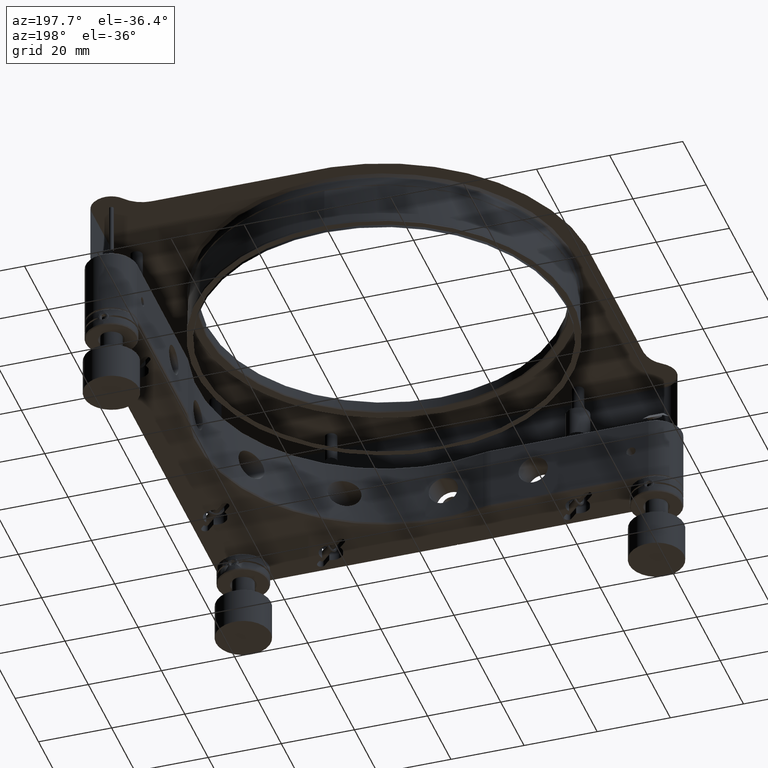
[diagram: clean part render]
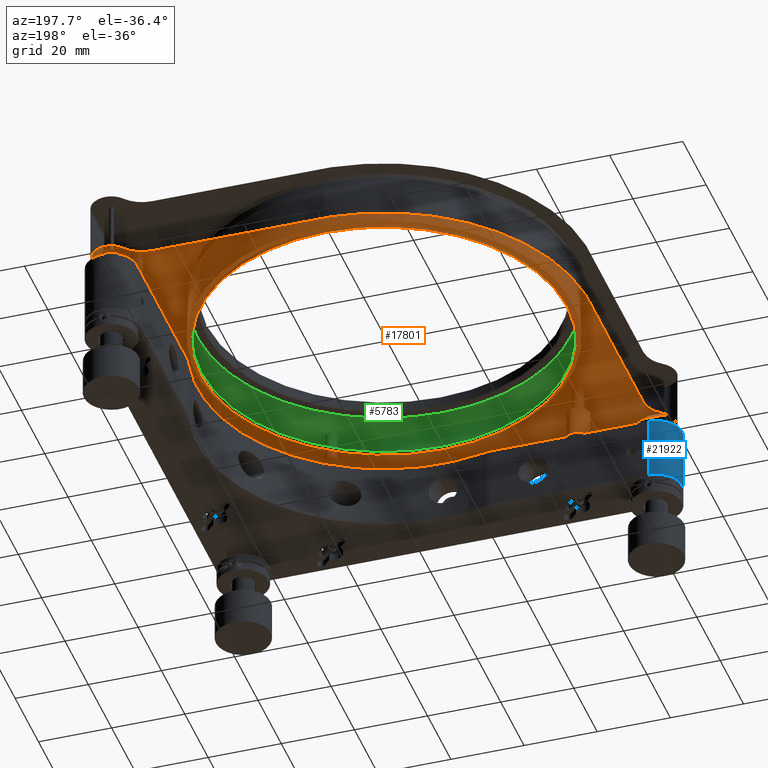
[diagram: same view with three faces highlighted in distinct colors, each labeled with its STEP entity id]
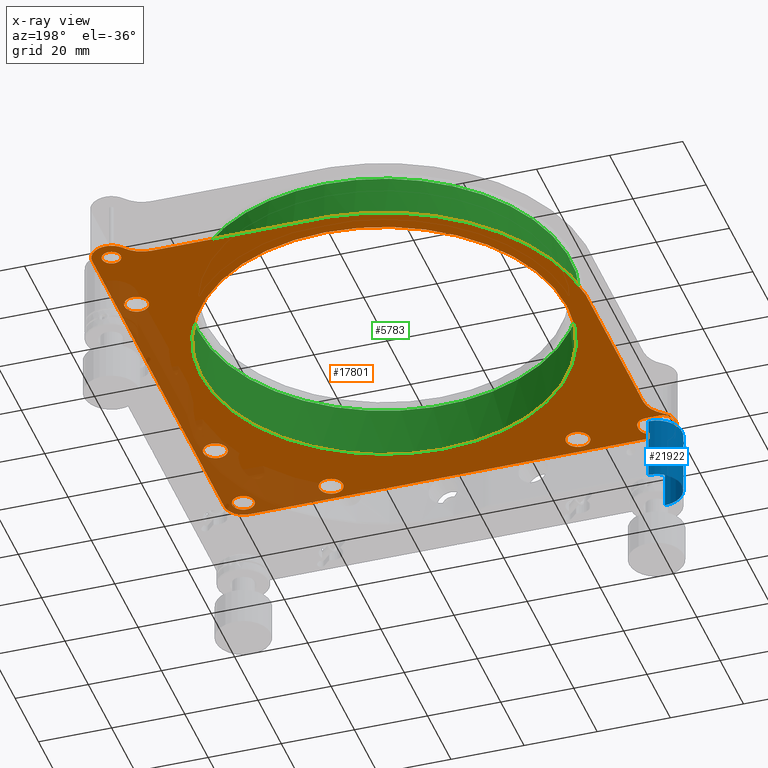
[diagram: x-ray of the same camera — body ghosted, the three highlighted faces saturated]
A machine part, auxiliary view with three faces highlighted in distinct colors.
The next image is the same camera in x-ray (body ghosted, the three faces saturated) — at least one of them is partly hidden behind the body in this view.
Their STEP definitions:

[orange] entity #17801 — the highlighted planar face has unit normal (0, -0, 1).
#8 = ORIENTED_EDGE ( 'NONE', *, *, #5079, .T. ) ;
#16 = CARTESIAN_POINT ( 'NONE',  ( 59.75000000000002132, -32.08654395897411149, 12.50000000000000178 ) ) ;
#32 = CARTESIAN_POINT ( 'NONE',  ( 35.55837324657357357, -57.59987886562964832, 12.50000000000000000 ) ) ;
#108 = CARTESIAN_POINT ( 'NONE',  ( -61.50000000000000000, -6.938893903907228378E-15, 12.49999999999999822 ) ) ;
#109 = VERTEX_POINT ( 'NONE', #10131 ) ;
#110 = CARTESIAN_POINT ( 'NONE',  ( 59.51230414422180104, 36.22031296209679851, 12.49999999999999822 ) ) ;
#130 = CARTESIAN_POINT ( 'NONE',  ( 59.36051604155395722, -30.94935188961942174, 12.49999999999999822 ) ) ;
#140 = CARTESIAN_POINT ( 'NONE',  ( 56.49999999999999289, 59.04999999999999716, 12.49999999999999822 ) ) ;
#149 = CARTESIAN_POINT ( 'NONE',  ( 58.59176995594345527, 57.97748617419879480, 12.50000000000000178 ) ) ;
#166 = VERTEX_POINT ( 'NONE', #140 ) ;
#188 = CARTESIAN_POINT ( 'NONE',  ( 58.38299834041822578, -35.16602837988042296, 12.49999999999999822 ) ) ;
#222 = LINE ( 'NONE', #108, #17177 ) ;
#365 = CARTESIAN_POINT ( 'NONE',  ( 57.45747392495564299, 54.13649982530289861, 12.50000000000000000 ) ) ;
#401 = CARTESIAN_POINT ( 'NONE',  ( 55.82777557760474707, 54.03765491789236108, 12.49999999999999645 ) ) ;
#403 = CARTESIAN_POINT ( 'NONE',  ( 53.63948395844541750, -34.05064811037905770, 12.49999999999999822 ) ) ;
#437 = EDGE_CURVE ( 'NONE', #10597, #10273, #1911, .T. ) ;
#468 = CARTESIAN_POINT ( 'NONE',  ( 56.90090509990348977, 59.02762002096365279, 12.50000000000000178 ) ) ;
#507 = CARTESIAN_POINT ( 'NONE',  ( 56.09909490009170696, 53.97237997903634721, 12.50000000000000178 ) ) ;
#525 = VECTOR ( 'NONE', #6469, 1000.000000000000000 ) ;
#547 = EDGE_CURVE ( 'NONE', #16985, #16985, #7678, .T. ) ;
#624 = CARTESIAN_POINT ( 'NONE',  ( 57.70830505842591407, 31.98293982930314883, 12.49999999999999645 ) ) ;
#720 = CARTESIAN_POINT ( 'NONE',  ( 54.13649560552932627, 55.54253672767232786, 12.50000000000000000 ) ) ;
#727 = CARTESIAN_POINT ( 'NONE',  ( 56.29353549750634045, 31.74996630715708079, 12.50000000000000178 ) ) ;
#728 = DIRECTION ( 'NONE',  ( 1.000000000000000000, 0.000000000000000000, 0.000000000000000000 ) ) ;
#743 = ORIENTED_EDGE ( 'NONE', *, *, #15657, .T. ) ;
#759 = EDGE_CURVE ( 'NONE', #19556, #17691, #11691, .T. ) ;
#800 = ORIENTED_EDGE ( 'NONE', *, *, #16741, .T. ) ;
#821 = CARTESIAN_POINT ( 'NONE',  ( -54.50000000000000000, -59.99999999997727684, 12.50000000002273559 ) ) ;
#837 = CARTESIAN_POINT ( 'NONE',  ( 55.47273322492613801, 31.91576706332245550, 12.49999999999999822 ) ) ;
#885 = CARTESIAN_POINT ( 'NONE',  ( 59.02767897086503979, 56.09924389264471500, 12.49999999999999822 ) ) ;
#942 = CARTESIAN_POINT ( 'NONE',  ( 53.24999999999998579, -32.50000000000002132, 12.49999999999999822 ) ) ;
#1001 = B_SPLINE_CURVE_WITH_KNOTS ( 'NONE', 3,
 ( #20170, #4586, #17324, #20870, #5159, #1747, #8544, #3111, #20527, #1400, #10254, #6611, #10023, #4942, #20643, #8317, #6728, #20760, #3227, #6838, #15734, #8659, #11860, #12198, #32, #11745, #1632, #4823, #3453, #18915, #17094, #18689, #3340, #12085, #5051, #19029, #10483, #15622, #22478 ),
 .UNSPECIFIED., .F., .F.,
 ( 4, 1, 1, 1, 2, 2, 2, 1, 1, 1, 1, 2, 2, 2, 1, 1, 1, 2, 2, 2, 1, 1, 1, 2, 2, 4 ),
 ( 0.000000000000000000, 0.06250000000000728584, 0.09375000000001112999, 0.1093750000000130451, 0.1171875000000126565, 0.1250000000000122680, 0.2500000000000029421, 0.3124999999999989453, 0.3437499999999983347, 0.3593749999999971689, 0.3671874999999952816, 0.3710937499999943379, 0.3749999999999933942, 0.5000000000000039968, 0.5625000000000093259, 0.5937500000000127676, 0.6093750000000148770, 0.6171875000000162093, 0.6250000000000175415, 0.7500000000000138778, 0.8125000000000114353, 0.8437500000000104361, 0.8593750000000103251, 0.8671875000000095479, 0.8750000000000086597, 1.000000000000000000 ),
 .UNSPECIFIED. ) ;
#1014 = EDGE_CURVE ( 'NONE', #5034, #9865, #15346, .T. ) ;
#1023 = EDGE_LOOP ( 'NONE', ( #19157, #1765 ) ) ;
#1064 = CARTESIAN_POINT ( 'NONE',  ( 57.72235410262057087, 31.98859782982692934, 12.49999999999999645 ) ) ;
#1138 = CARTESIAN_POINT ( 'NONE',  ( 29.63948395844732531, -58.05064811038189987, 12.49999999999999822 ) ) ;
#1152 = VERTEX_POINT ( 'NONE', #18413 ) ;
#1170 = CARTESIAN_POINT ( 'NONE',  ( 54.44821939941902400, 58.05435894408213215, 12.49999999999999467 ) ) ;
#1255 = CARTESIAN_POINT ( 'NONE',  ( 29.83397162011340598, -58.38299834041330882, 12.49999999999999467 ) ) ;
#1265 = ORIENTED_EDGE ( 'NONE', *, *, #8907, .T. ) ;
#1312 = CARTESIAN_POINT ( 'NONE',  ( -59.61111111109688920, -52.27111271675033066, 12.49999999994979838 ) ) ;
#1367 = CARTESIAN_POINT ( 'NONE',  ( 53.36171705221578776, 35.85678877692289035, 12.50000000000000355 ) ) ;
#1379 = CARTESIAN_POINT ( 'NONE',  ( 29.88490291046107217, -54.51900807380524583, 12.50000000000000178 ) ) ;
#1400 = CARTESIAN_POINT ( 'NONE',  ( 34.48099192619451259, -53.88490291046946368, 12.50000000000000000 ) ) ;
#1407 = DIRECTION ( 'NONE',  ( -2.891205793401602013E-16, -0.000000000000000000, -1.000000000000000000 ) ) ;
#1446 = ORIENTED_EDGE ( 'NONE', *, *, #15703, .T. ) ;
#1482 = CARTESIAN_POINT ( 'NONE',  ( 53.25000000000001421, 34.99999999999998579, 12.49999999999999822 ) ) ;
#1502 = LINE ( 'NONE', #18903, #21553 ) ;
#1617 = CARTESIAN_POINT ( 'NONE',  ( 54.94935188961967043, -29.63948395844673200, 12.49999999999999822 ) ) ;
#1632 = CARTESIAN_POINT ( 'NONE',  ( 35.53212321998479695, -57.67025004565781643, 12.49999999999999645 ) ) ;
#1731 = CARTESIAN_POINT ( 'NONE',  ( 59.44531297559926486, -31.12377328248748398, 12.49999999999999822 ) ) ;
#1747 = CARTESIAN_POINT ( 'NONE',  ( 33.59991811257247463, -53.44164228372122238, 12.50000000000000000 ) ) ;
#1765 = ORIENTED_EDGE ( 'NONE', *, *, #11408, .T. ) ;
#1825 = CARTESIAN_POINT ( 'NONE',  ( 54.61700165958097131, 37.66602837987957031, 12.50000000000000000 ) ) ;
#1911 = CIRCLE ( 'NONE', #12789, 8.250000000000007105 ) ;
#1943 = EDGE_CURVE ( 'NONE', #1152, #5511, #7347, .T. ) ;
#2014 = CARTESIAN_POINT ( 'NONE',  ( 59.75000000000000000, -32.70654964841059353, 12.49999999999999822 ) ) ;
#2083 = CARTESIAN_POINT ( 'NONE',  ( 58.99025253952142833, 57.13749330226316658, 12.50000000000000178 ) ) ;
#2120 = CARTESIAN_POINT ( 'NONE',  ( 56.33795719357973297, 53.94999999999998863, 12.49999999999999645 ) ) ;
#2123 = CARTESIAN_POINT ( 'NONE',  ( 53.83397162011084447, -34.38299834040953584, 12.49999999999999822 ) ) ;
#2125 = VERTEX_POINT ( 'NONE', #18103 ) ;
#2226 = CARTESIAN_POINT ( 'NONE',  ( 53.49915581544892262, -33.74830222918999567, 12.50000000000000178 ) ) ;
#2299 = DIRECTION ( 'NONE',  ( -1.000000000000000000, -0.000000000000000000, 0.000000000000000000 ) ) ;
#2308 = AXIS2_PLACEMENT_3D ( 'NONE', #21997, #6371, #13327 ) ;
#2336 = CARTESIAN_POINT ( 'NONE',  ( 59.75000000000000000, -32.50000000000002132, 12.49999999999999822 ) ) ;
#2437 = CARTESIAN_POINT ( 'NONE',  ( 54.11434481280343078, 57.40086769574206471, 12.50000000000000355 ) ) ;
#2448 = CARTESIAN_POINT ( 'NONE',  ( 53.55468702440038697, 33.62377328248836506, 12.50000000000000000 ) ) ;
#2506 = DIRECTION ( 'NONE',  ( 1.731260954068669895E-17, -2.397811592866208433E-33, -1.000000000000000000 ) ) ;
#2559 = CARTESIAN_POINT ( 'NONE',  ( 58.63959701351637221, 32.54335040481289099, 12.49999999999999822 ) ) ;
#2602 = CARTESIAN_POINT ( 'NONE',  ( 57.71670489386693248, 54.25562280091735801, 12.49999999999999822 ) ) ;
#2618 = AXIS2_PLACEMENT_3D ( 'NONE', #5953, #9680, #22019 ) ;
#2770 = CARTESIAN_POINT ( 'NONE',  ( 54.25562280091596534, 55.28329510613741604, 12.49999999999999822 ) ) ;
#2771 = EDGE_CURVE ( 'NONE', #16187, #1152, #222, .T. ) ;
#2781 = CARTESIAN_POINT ( 'NONE',  ( 59.63828294778424066, 34.14321122306871814, 12.49999999999999467 ) ) ;
#2837 = DIRECTION ( 'NONE',  ( -1.000000000000000000, 0.000000000000000000, -3.462521908137339173E-17 ) ) ;
#2851 = CARTESIAN_POINT ( 'NONE',  ( 31.40008188742850237, -59.55835771627882735, 12.50000000000000000 ) ) ;
#2886 = CARTESIAN_POINT ( 'NONE',  ( 56.17555764291520859, 59.05000000000000426, 12.49999999999999822 ) ) ;
#2896 = CARTESIAN_POINT ( 'NONE',  ( 59.11509708953619224, 33.01900807380532399, 12.50000000000000178 ) ) ;
#2975 = CARTESIAN_POINT ( 'NONE',  ( 53.45946947290456563, -31.35180307566772484, 12.49999999999999822 ) ) ;
#3087 = CARTESIAN_POINT ( 'NONE',  ( 30.61700165958857056, -53.83397162011532799, 12.50000000000000000 ) ) ;
#3094 = CARTESIAN_POINT ( 'NONE',  ( 53.36171705221576644, -31.64321122307530487, 12.50000000000000000 ) ) ;
#3111 = CARTESIAN_POINT ( 'NONE',  ( 33.67025004565800828, -53.46787678001521016, 12.49999999999999822 ) ) ;
#3166 = ORIENTED_EDGE ( 'NONE', *, *, #759, .T. ) ;
#3187 = VECTOR ( 'NONE', #10613, 1000.000000000000000 ) ;
#3194 = CARTESIAN_POINT ( 'NONE',  ( 59.75000000000002842, 34.99999999999998579, 12.49999999999999822 ) ) ;
#3212 = CARTESIAN_POINT ( 'NONE',  ( 57.35667702291667780, -29.36167283035949893, 12.50000000000000000 ) ) ;
#3227 = CARTESIAN_POINT ( 'NONE',  ( 35.67386982664748984, -55.68760426912336214, 12.49999999999999822 ) ) ;
#3306 = CARTESIAN_POINT ( 'NONE',  ( 53.27852350269338899, 35.51100036046814523, 12.49999999999999822 ) ) ;
#3319 = CARTESIAN_POINT ( 'NONE',  ( 29.46787678001517108, -55.32974995434256726, 12.50000000000000000 ) ) ;
#3325 = CARTESIAN_POINT ( 'NONE',  ( 55.25174685579701617, -29.49922990412053636, 12.49999999999999645 ) ) ;
#3340 = CARTESIAN_POINT ( 'NONE',  ( 33.87622671751461212, -59.44531297559777272, 12.50000000000000178 ) ) ;
#3369 = DIRECTION ( 'NONE',  ( -2.891205793378818724E-16, -0.000000000000000000, -1.000000000000000000 ) ) ;
#3378 = LINE ( 'NONE', #8469, #22378 ) ;
#3384 = EDGE_CURVE ( 'NONE', #14627, #20884, #14119, .T. ) ;
#3434 = CARTESIAN_POINT ( 'NONE',  ( 56.70646450249545012, -29.24996630715713763, 12.50000000000000000 ) ) ;
#3453 = CARTESIAN_POINT ( 'NONE',  ( 35.11509708953335007, -58.48099192619461917, 12.50000000000000178 ) ) ;
#3484 = CARTESIAN_POINT ( 'NONE',  ( -56.50000000000000711, -61.74999999998648548, 12.49999999998648192 ) ) ;
#3531 = CARTESIAN_POINT ( 'NONE',  ( 55.21304554838290102, 37.98459971842299154, 12.49999999999999645 ) ) ;
#3586 = ORIENTED_EDGE ( 'NONE', *, *, #3874, .T. ) ;
#3658 = CARTESIAN_POINT ( 'NONE',  ( 59.16602837988828156, -30.61700165958842490, 12.49999999999999645 ) ) ;
#3676 = CARTESIAN_POINT ( 'NONE',  ( 57.13732286021675577, 54.00967994409691642, 12.50000000000000178 ) ) ;
#3717 = CARTESIAN_POINT ( 'NONE',  ( 55.32974995434243937, -35.53212321998495327, 12.50000000000000000 ) ) ;
#3793 = CARTESIAN_POINT ( 'NONE',  ( 58.89965004283246230, 55.63703543234420579, 12.50000000000000000 ) ) ;
#3815 = LINE ( 'NONE', #19284, #3187 ) ;
#3874 = EDGE_CURVE ( 'NONE', #6096, #14575, #15381, .T. ) ;
#3895 = CARTESIAN_POINT ( 'NONE',  ( 57.41820024217043539, 58.87904789187304999, 12.50000000000000000 ) ) ;
#3936 = CARTESIAN_POINT ( 'NONE',  ( 57.70830505842565117, -35.51706017069685828, 12.50000000000000000 ) ) ;
#3967 = CARTESIAN_POINT ( 'NONE',  ( -54.50000000000000000, -53.00000000003547740, 12.50000000004547651 ) ) ;
#4006 = CARTESIAN_POINT ( 'NONE',  ( 58.74437719908870292, 57.71670489385934388, 12.49999999999999822 ) ) ;
#4008 = CARTESIAN_POINT ( 'NONE',  ( 0.000000000000000000, -60.00000000000002132, 12.49999999999999822 ) ) ;
#4031 = CARTESIAN_POINT ( 'NONE',  ( -34.99999999999999289, -56.50000000000000711, 12.49999999999999822 ) ) ;
#4144 = EDGE_CURVE ( 'NONE', #20606, #8665, #19742, .T. ) ;
#4148 = CARTESIAN_POINT ( 'NONE',  ( 56.49999999999999289, 59.04999999999999716, 12.49999999999999822 ) ) ;
#4151 = CARTESIAN_POINT ( 'NONE',  ( 59.53212321998520196, -33.67025004565723378, 12.49999999999999645 ) ) ;
#4253 = CARTESIAN_POINT ( 'NONE',  ( 53.95006737131163277, 56.17608466435437009, 12.49999999999999822 ) ) ;
#4345 = CARTESIAN_POINT ( 'NONE',  ( -3.492255483360728885, 56.24999999999997158, 12.49999999999999289 ) ) ;
#4372 = CARTESIAN_POINT ( 'NONE',  ( 59.55835771627881314, 33.90008188742619666, 12.49999999999999822 ) ) ;
#4486 = CARTESIAN_POINT ( 'NONE',  ( 59.75000000000002842, 34.99999999999998579, 12.49999999999999822 ) ) ;
#4545 = CARTESIAN_POINT ( 'NONE',  ( 59.75000000000002842, 34.99999999999998579, 12.49999999999999822 ) ) ;
#4582 = VECTOR ( 'NONE', #10880, 1000.000000000000000 ) ;
#4586 = CARTESIAN_POINT ( 'NONE',  ( 32.70654964840846191, -53.24999999999999289, 12.49999999999999822 ) ) ;
#4593 = CARTESIAN_POINT ( 'NONE',  ( 55.02251382579049022, 58.59176995593670512, 12.49999999999999645 ) ) ;
#4603 = CARTESIAN_POINT ( 'NONE',  ( 54.88676802723406922, 32.14316788605252384, 12.49999999999999822 ) ) ;
#4641 = ORIENTED_EDGE ( 'NONE', *, *, #8333, .T. ) ;
#4668 = DIRECTION ( 'NONE',  ( -1.000000000000000000, 0.000000000000000000, 0.000000000000000000 ) ) ;
#4681 = CARTESIAN_POINT ( 'NONE',  ( 31.25169777080978051, -53.49915581544954080, 12.49999999999999822 ) ) ;
#4798 = CARTESIAN_POINT ( 'NONE',  ( 31.27968703790214633, -53.48769585577823449, 12.50000000000000000 ) ) ;
#4805 = CARTESIAN_POINT ( 'NONE',  ( 57.52726677507522624, -29.41576706332250879, 12.50000000000000000 ) ) ;
#4823 = CARTESIAN_POINT ( 'NONE',  ( 35.35683211394236736, -58.11323197276816899, 12.50000000000000000 ) ) ;
#4926 = CARTESIAN_POINT ( 'NONE',  ( 53.44164228372117975, -31.40008188742852369, 12.49999999999999645 ) ) ;
#4942 = CARTESIAN_POINT ( 'NONE',  ( 35.44531297559777983, -55.12377328248432207, 12.49999999999999822 ) ) ;
#5006 = FACE_BOUND ( 'NONE', #15698, .T. ) ;
#5030 = CARTESIAN_POINT ( 'NONE',  ( 29.49922990412061452, -57.74825314420330358, 12.50000000000000000 ) ) ;
#5034 = VERTEX_POINT ( 'NONE', #4345 ) ;
#5036 = CARTESIAN_POINT ( 'NONE',  ( 55.21304554838469869, -29.51540028157519302, 12.49999999999999822 ) ) ;
#5051 = CARTESIAN_POINT ( 'NONE',  ( 33.74830222919090517, -59.50084418455048763, 12.49999999999999467 ) ) ;
#5079 = EDGE_CURVE ( 'NONE', #8090, #8090, #16795, .T. ) ;
#5122 = CARTESIAN_POINT ( 'NONE',  ( 53.88490291046979763, 36.98099192620057352, 12.50000000000000000 ) ) ;
#5142 = CARTESIAN_POINT ( 'NONE',  ( 55.68760426912202632, -29.32613017335252792, 12.49999999999999645 ) ) ;
#5159 = CARTESIAN_POINT ( 'NONE',  ( 33.52733196491487888, -53.41579285940534305, 12.49999999999999822 ) ) ;
#5237 = CARTESIAN_POINT ( 'NONE',  ( 57.64817630305644514, 38.04053868708081154, 12.50000000000000178 ) ) ;
#5252 = VECTOR ( 'NONE', #8316, 1000.000000000000000 ) ;
#5271 = CARTESIAN_POINT ( 'NONE',  ( 58.86350439447091532, 57.45746327232774320, 12.49999999999999645 ) ) ;
#5303 = DIRECTION ( 'NONE',  ( -1.000000000000000000, 0.000000000000000000, 5.782411586648079458E-16 ) ) ;
#5363 = CIRCLE ( 'NONE', #12971, 5.249999999989540811 ) ;
#5384 = CARTESIAN_POINT ( 'NONE',  ( 58.81092171771456378, 57.57983346463817753, 12.49999999999999822 ) ) ;
#5426 = CARTESIAN_POINT ( 'NONE',  ( 55.47273322492232239, -35.58423293667753740, 12.49999999999999822 ) ) ;
#5490 = B_SPLINE_CURVE_WITH_KNOTS ( 'NONE', 3,
 ( #7390, #19479, #468, #17435, #14237, #12532, #5707, #3895, #19588, #15733, #15950, #149, #4006, #5384, #14024, #7177, #5271, #2083, #7069, #20869, #885, #17658, #20986, #3793, #12197, #15843, #10916, #9097, #17870, #16473, #2602, #9511, #12311, #19262, #365, #3676, #7278, #5598 ),
 .UNSPECIFIED., .F., .F.,
 ( 4, 1, 1, 1, 2, 2, 2, 1, 1, 1, 2, 2, 2, 1, 1, 1, 2, 2, 2, 1, 1, 1, 2, 2, 4 ),
 ( 0.000000000000000000, 0.06249999999998485933, 0.09374999999997887801, 0.1093749999999762829, 0.1171874999999766853, 0.1249999999999771017, 0.2499999999999978351, 0.3125000000000064393, 0.3437500000000097145, 0.3593750000000113243, 0.3671875000000127676, 0.3750000000000141553, 0.5000000000000145439, 0.5625000000000147660, 0.5937500000000132117, 0.6093750000000124345, 0.6171875000000121014, 0.6250000000000117684, 0.7499999999999965583, 0.8124999999999890088, 0.8437499999999870104, 0.8593749999999871214, 0.8671874999999855671, 0.8749999999999840128, 1.000000000000000000 ),
 .UNSPECIFIED. ) ;
#5511 = VERTEX_POINT ( 'NONE', #14222 ) ;
#5530 = CARTESIAN_POINT ( 'NONE',  ( 55.40012113437035168, -35.55837324657360909, 12.50000000000000355 ) ) ;
#5598 = CARTESIAN_POINT ( 'NONE',  ( 56.49999999999999289, 53.94999999999998863, 12.49999999999999822 ) ) ;
#5640 = CARTESIAN_POINT ( 'NONE',  ( 53.32606267384901599, -33.31222530971795237, 12.50000000000000178 ) ) ;
#5686 = CARTESIAN_POINT ( 'NONE',  ( -58.50000000000000000, -59.99999999998477307, 12.50000000004547474 ) ) ;
#5691 = AXIS2_PLACEMENT_3D ( 'NONE', #12907, #16971, #6492 ) ;
#5707 = CARTESIAN_POINT ( 'NONE',  ( 57.40088831524547430, 58.88564702895182279, 12.50000000000000178 ) ) ;
#5728 = DIRECTION ( 'NONE',  ( 0.000000000000000000, 0.000000000000000000, 1.000000000000000000 ) ) ;
#5848 = CARTESIAN_POINT ( 'NONE',  ( 59.54053052709540594, -33.64819692433335518, 12.49999999999999467 ) ) ;
#5854 = CARTESIAN_POINT ( 'NONE',  ( 59.58420714059471379, 33.97266803508293265, 12.50000000000000000 ) ) ;
#5878 = ORIENTED_EDGE ( 'NONE', *, *, #437, .T. ) ;
#5953 = CARTESIAN_POINT ( 'NONE',  ( 3.830541138685913086E-18, -6.938893903907228378E-15, 12.49999999999999289 ) ) ;
#6059 = CARTESIAN_POINT ( 'NONE',  ( 53.97232102913866214, 56.90075610736278833, 12.50000000000000178 ) ) ;
#6067 = CARTESIAN_POINT ( 'NONE',  ( 59.54053052709544147, 33.85180307566647429, 12.50000000000000178 ) ) ;
#6096 = VERTEX_POINT ( 'NONE', #3967 ) ;
#6128 = DIRECTION ( 'NONE',  ( 0.000000000000000000, 0.000000000000000000, 1.000000000000000000 ) ) ;
#6246 = CARTESIAN_POINT ( 'NONE',  ( 30.94935188961951766, -53.63948395844876416, 12.50000000000000000 ) ) ;
#6277 = CARTESIAN_POINT ( 'NONE',  ( 54.40823004406280461, 55.02251382579692773, 12.49999999999999645 ) ) ;
#6285 = CARTESIAN_POINT ( 'NONE',  ( 54.51900807381034042, 32.38490291045881975, 12.49999999999999645 ) ) ;
#6357 = CARTESIAN_POINT ( 'NONE',  ( 30.04335040481187136, -58.63959701351602405, 12.49999999999999467 ) ) ;
#6364 = CARTESIAN_POINT ( 'NONE',  ( 53.46787678001513910, -31.32974995434244292, 12.50000000000000355 ) ) ;
#6371 = DIRECTION ( 'NONE',  ( -2.891205793401595110E-16, -0.000000000000000000, -1.000000000000000000 ) ) ;
#6469 = DIRECTION ( 'NONE',  ( -1.000000000000000000, -0.000000000000000000, 0.000000000000000000 ) ) ;
#6474 = CARTESIAN_POINT ( 'NONE',  ( 29.48859782982682987, -57.72235410262052113, 12.49999999999999645 ) ) ;
#6492 = DIRECTION ( 'NONE',  ( -1.000000000000000000, 0.000000000000000000, 0.000000000000000000 ) ) ;
#6567 = VERTEX_POINT ( 'NONE', #12614 ) ;
#6576 = CARTESIAN_POINT ( 'NONE',  ( 59.50084418454903812, 36.24830222919165124, 12.49999999999999822 ) ) ;
#6611 = CARTESIAN_POINT ( 'NONE',  ( 35.16602837988492780, -54.61700165958122710, 12.50000000000000000 ) ) ;
#6650 = EDGE_LOOP ( 'NONE', ( #8 ) ) ;
#6654 = AXIS2_PLACEMENT_3D ( 'NONE', #13609, #3369, #5303 ) ;
#6707 = CARTESIAN_POINT ( 'NONE',  ( 31.20029236754224300, -53.52101267340818680, 12.50000000000000355 ) ) ;
#6728 = CARTESIAN_POINT ( 'NONE',  ( 35.51140217017305645, -55.27764589737910939, 12.49999999999999645 ) ) ;
#6812 = ORIENTED_EDGE ( 'NONE', *, *, #16331, .T. ) ;
#6838 = CARTESIAN_POINT ( 'NONE',  ( 35.74993261431422553, -56.08707099500284698, 12.49999999999999822 ) ) ;
#6913 = CARTESIAN_POINT ( 'NONE',  ( 57.52726677507334330, 38.08423293667751608, 12.49999999999999645 ) ) ;
#7020 = DIRECTION ( 'NONE',  ( 1.000000000000000000, 0.000000000000000000, -0.000000000000000000 ) ) ;
#7030 = CARTESIAN_POINT ( 'NONE',  ( 59.44531297559313998, 36.37622671751700665, 12.49999999999999822 ) ) ;
#7069 = CARTESIAN_POINT ( 'NONE',  ( 59.04993262868414661, 56.82391533563711050, 12.50000000000000000 ) ) ;
#7107 = CARTESIAN_POINT ( 'NONE',  ( 57.72235410262083377, -35.51140217017276512, 12.49999999999999822 ) ) ;
#7155 = EDGE_CURVE ( 'NONE', #9865, #10597, #1502, .T. ) ;
#7177 = CARTESIAN_POINT ( 'NONE',  ( 58.85450340363551902, 57.47944498153086812, 12.50000000000000355 ) ) ;
#7217 = CARTESIAN_POINT ( 'NONE',  ( 57.87622671751541503, -35.44531297559583294, 12.49999999999999822 ) ) ;
#7278 = CARTESIAN_POINT ( 'NONE',  ( 56.82444235708915414, 53.95000000000000284, 12.50000000000000000 ) ) ;
#7315 = AXIS2_PLACEMENT_3D ( 'NONE', #11465, #2506, #2837 ) ;
#7317 = CARTESIAN_POINT ( 'NONE',  ( 53.55468702440035855, -33.87622671751163494, 12.49999999999999822 ) ) ;
#7347 = CIRCLE ( 'NONE', #16088, 2.999999999945893059 ) ;
#7390 = CARTESIAN_POINT ( 'NONE',  ( 56.49999999999999289, 59.04999999999999716, 12.49999999999999822 ) ) ;
#7428 = CARTESIAN_POINT ( 'NONE',  ( 55.63699618876996311, 54.10036548415046553, 12.50000000000000000 ) ) ;
#7520 = AXIS2_PLACEMENT_3D ( 'NONE', #19098, #13863, #7020 ) ;
#7540 = CARTESIAN_POINT ( 'NONE',  ( 59.63828294778423356, -33.35678877693032263, 12.50000000000000355 ) ) ;
#7547 = CARTESIAN_POINT ( 'NONE',  ( 54.04335040481044672, 32.86040298648612890, 12.50000000000000000 ) ) ;
#7648 = CARTESIAN_POINT ( 'NONE',  ( 53.24999999999999289, 34.58654395897404044, 12.49999999999999467 ) ) ;
#7678 = CIRCLE ( 'NONE', #7315, 50.10000000000000853 ) ;
#7741 = LINE ( 'NONE', #8287, #525 ) ;
#7752 = CARTESIAN_POINT ( 'NONE',  ( 55.28329510613262698, 58.74437719908369360, 12.50000000000000000 ) ) ;
#7766 = CARTESIAN_POINT ( 'NONE',  ( 59.75000000000000000, -32.50000000000002132, 12.49999999999999822 ) ) ;
#7861 = CARTESIAN_POINT ( 'NONE',  ( 54.12095210812688606, 57.41820024217065566, 12.50000000000000000 ) ) ;
#7952 = ORIENTED_EDGE ( 'NONE', *, *, #16800, .F. ) ;
#7974 = CARTESIAN_POINT ( 'NONE',  ( 55.48021445982191580, 58.83734956077812228, 12.50000000000000000 ) ) ;
#7982 = CARTESIAN_POINT ( 'NONE',  ( 55.98914864487655052, 31.77846454021831235, 12.49999999999999645 ) ) ;
#8055 = CARTESIAN_POINT ( 'NONE',  ( 29.25006738568577447, -56.91292900499220764, 12.50000000000000000 ) ) ;
#8090 = VERTEX_POINT ( 'NONE', #15043 ) ;
#8164 = CARTESIAN_POINT ( 'NONE',  ( -61.49999999998476596, -57.00000000000000000, 12.50000000004547474 ) ) ;
#8169 = DIRECTION ( 'NONE',  ( 1.000000000000000000, 0.000000000000000000, 0.000000000000000000 ) ) ;
#8185 = CARTESIAN_POINT ( 'NONE',  ( 53.24999999999997868, -32.29345035159369814, 12.50000000000000000 ) ) ;
#8192 = VERTEX_POINT ( 'NONE', #3484 ) ;
#8273 = EDGE_LOOP ( 'NONE', ( #22542, #6812 ) ) ;
#8282 = CARTESIAN_POINT ( 'NONE',  ( 55.29169494157437015, 38.01706017069680144, 12.49999999999999645 ) ) ;
#8287 = CARTESIAN_POINT ( 'NONE',  ( 0.000000000000000000, 56.24999999999996447, 12.49999999999999822 ) ) ;
#8292 = CARTESIAN_POINT ( 'NONE',  ( 31.98899963952941405, -59.72147649730661811, 12.49999999999999645 ) ) ;
#8299 = CARTESIAN_POINT ( 'NONE',  ( 58.11323197276606578, -29.64316788605412967, 12.50000000000000178 ) ) ;
#8316 = DIRECTION ( 'NONE',  ( 0.000000000000000000, 1.000000000000000000, 0.000000000000000000 ) ) ;
#8317 = CARTESIAN_POINT ( 'NONE',  ( 35.50077009587915455, -55.25174685579597167, 12.49999999999999467 ) ) ;
#8333 = EDGE_CURVE ( 'NONE', #17519, #16187, #16467, .T. ) ;
#8359 = EDGE_LOOP ( 'NONE', ( #13500 ) ) ;
#8469 = CARTESIAN_POINT ( 'NONE',  ( 0.000000000000000000, -61.75000000000000711, 12.49999999999999822 ) ) ;
#8505 = CARTESIAN_POINT ( 'NONE',  ( 57.67025004565773827, 38.03212321998452694, 12.49999999999999822 ) ) ;
#8544 = CARTESIAN_POINT ( 'NONE',  ( 33.64819692433282228, -53.45946947290457985, 12.50000000000000000 ) ) ;
#8545 = CARTESIAN_POINT ( 'NONE',  ( -56.25000000000000711, -45.62571841453423360, 12.49999999999999467 ) ) ;
#8621 = CARTESIAN_POINT ( 'NONE',  ( 57.01085135512221314, 38.22153545978164857, 12.50000000000000000 ) ) ;
#8659 = CARTESIAN_POINT ( 'NONE',  ( 35.72153545978165567, -57.01085135513204705, 12.49999999999999645 ) ) ;
#8665 = VERTEX_POINT ( 'NONE', #821 ) ;
#8739 = CARTESIAN_POINT ( 'NONE',  ( 56.08707099501408777, 38.24993261431419711, 12.49999999999999645 ) ) ;
#8750 = EDGE_CURVE ( 'NONE', #13491, #2125, #10022, .T. ) ;
#8826 = B_SPLINE_CURVE_WITH_KNOTS ( 'NONE', 3,
 ( #17693, #2120, #507, #401, #10843, #7428, #17800, #9794, #11395, #13119, #18349, #6277, #2770, #21894, #16312, #14813, #720, #13230, #4253, #12897, #6059, #13009, #16755, #20178, #2437, #7861, #14703, #1170, #9452, #4593, #7752, #14923, #7974, #11510, #15045, #18465, #2886, #4148 ),
 .UNSPECIFIED., .F., .F.,
 ( 4, 1, 1, 1, 2, 2, 2, 1, 1, 1, 2, 2, 2, 1, 1, 1, 2, 2, 2, 1, 1, 1, 2, 2, 4 ),
 ( 0.000000000000000000, 0.06250000000000424660, 0.09375000000000528744, 0.1093750000000061756, 0.1171875000000070777, 0.1250000000000079659, 0.2500000000000409672, 0.3125000000000575096, 0.3437500000000653921, 0.3593750000000687228, 0.3671875000000714984, 0.3750000000000743294, 0.5000000000000880407, 0.5625000000000934808, 0.5937500000000951461, 0.6093750000000957012, 0.6171875000000942579, 0.6250000000000928146, 0.7500000000000622835, 0.8125000000000460743, 0.8437500000000369704, 0.8593750000000324185, 0.8671875000000306422, 0.8750000000000287548, 1.000000000000000000 ),
 .UNSPECIFIED. ) ;
#8848 = CARTESIAN_POINT ( 'NONE',  ( 0.000000000000000000, -53.00000000000000711, 12.49999999999999822 ) ) ;
#8907 = EDGE_CURVE ( 'NONE', #166, #17699, #5490, .T. ) ;
#8997 = ORIENTED_EDGE ( 'NONE', *, *, #15035, .T. ) ;
#9032 = CARTESIAN_POINT ( 'NONE',  ( 57.74825314420392885, -35.50077009587855059, 12.49999999999999467 ) ) ;
#9097 = CARTESIAN_POINT ( 'NONE',  ( 58.55178060058158707, 54.94564105591621939, 12.49999999999999822 ) ) ;
#9114 = DIRECTION ( 'NONE',  ( 0.000000000000000000, 0.000000000000000000, -1.000000000000000000 ) ) ;
#9137 = CARTESIAN_POINT ( 'NONE',  ( 53.25000000000000000, -32.91345604102594535, 12.50000000000000000 ) ) ;
#9304 = CARTESIAN_POINT ( 'NONE',  ( -54.50000000000000000, -57.00000000000000711, 12.50000000004547474 ) ) ;
#9350 = CARTESIAN_POINT ( 'NONE',  ( 58.63959701351883069, -34.95664959518461501, 12.50000000000000000 ) ) ;
#9356 = CARTESIAN_POINT ( 'NONE',  ( 53.52101267340702151, 33.70029236754272262, 12.49999999999999822 ) ) ;
#9452 = CARTESIAN_POINT ( 'NONE',  ( 54.82120686225194817, 58.42750396599747376, 12.50000000000000355 ) ) ;
#9459 = CARTESIAN_POINT ( 'NONE',  ( 59.75000000000003553, 34.79345035158868882, 12.50000000000000000 ) ) ;
#9511 = CARTESIAN_POINT ( 'NONE',  ( 57.57983346464263263, 54.18907828228898893, 12.50000000000000000 ) ) ;
#9607 = EDGE_CURVE ( 'NONE', #6567, #5034, #7741, .T. ) ;
#9629 = EDGE_CURVE ( 'NONE', #12093, #12093, #12516, .T. ) ;
#9680 = DIRECTION ( 'NONE',  ( -1.532216455474278953E-17, 0.000000000000000000, 1.000000000000000000 ) ) ;
#9686 = CARTESIAN_POINT ( 'NONE',  ( 57.87622671751353209, 32.05468702440224860, 12.49999999999999822 ) ) ;
#9794 = CARTESIAN_POINT ( 'NONE',  ( 55.58179975783004778, 54.12095210812660184, 12.50000000000000178 ) ) ;
#9865 = VERTEX_POINT ( 'NONE', #18073 ) ;
#9885 = CARTESIAN_POINT ( 'NONE',  ( 53.27852350269338899, -31.98899963952946024, 12.50000000000000355 ) ) ;
#10000 = CARTESIAN_POINT ( 'NONE',  ( 29.55468702440148121, -57.87622671751331183, 12.49999999999999822 ) ) ;
#10007 = CARTESIAN_POINT ( 'NONE',  ( 57.67025004565795854, -29.46787678001543398, 12.49999999999999822 ) ) ;
#10022 = LINE ( 'NONE', #11744, #5252 ) ;
#10023 = CARTESIAN_POINT ( 'NONE',  ( 35.36051604155141348, -54.94935188961400030, 12.49999999999999822 ) ) ;
#10105 = CARTESIAN_POINT ( 'NONE',  ( 53.25000000000002842, 35.20654964840492340, 12.50000000000000000 ) ) ;
#10131 = CARTESIAN_POINT ( 'NONE',  ( 32.50000000000000000, -53.25000000000000711, 12.49999999999999822 ) ) ;
#10229 = CARTESIAN_POINT ( 'NONE',  ( 31.64321122307528356, -59.63828294778429040, 12.50000000000000178 ) ) ;
#10254 = CARTESIAN_POINT ( 'NONE',  ( 34.95664959518718717, -54.36040298648087798, 12.50000000000000000 ) ) ;
#10273 = VERTEX_POINT ( 'NONE', #1312 ) ;
#10332 = CARTESIAN_POINT ( 'NONE',  ( 54.36040298648070745, 37.45664959518410342, 12.49999999999999822 ) ) ;
#10444 = EDGE_LOOP ( 'NONE', ( #3166, #18471 ) ) ;
#10445 = CARTESIAN_POINT ( 'NONE',  ( 55.25174685579597167, 38.00077009587840138, 12.50000000000000355 ) ) ;
#10483 = CARTESIAN_POINT ( 'NONE',  ( 33.31222530972217299, -59.67393732615096269, 12.50000000000000178 ) ) ;
#10571 = CARTESIAN_POINT ( 'NONE',  ( 59.47898732659278664, -31.20029236754220747, 12.49999999999999467 ) ) ;
#10575 = DIRECTION ( 'NONE',  ( -0.000000000000000000, -1.000000000000000000, -0.000000000000000000 ) ) ;
#10597 = VERTEX_POINT ( 'NONE', #8545 ) ;
#10613 = DIRECTION ( 'NONE',  ( 3.043374519257541731E-17, 1.000000000000000000, 3.043374519257553441E-17 ) ) ;
#10747 = CARTESIAN_POINT ( 'NONE',  ( 54.51900807381031200, -35.11509708954116604, 12.49999999999999467 ) ) ;
#10787 = CARTESIAN_POINT ( 'NONE',  ( -51.50000000001522693, -57.00000000000000711, 12.50000000002273559 ) ) ;
#10827 = EDGE_LOOP ( 'NONE', ( #15174, #16993, #19049, #5878, #743, #21648, #16556, #19046, #800, #1446 ) ) ;
#10843 = CARTESIAN_POINT ( 'NONE',  ( 55.69395425467356375, 54.08008362814879177, 12.50000000000000000 ) ) ;
#10880 = DIRECTION ( 'NONE',  ( 1.000000000000000000, 0.000000000000000000, -0.000000000000000000 ) ) ;
#10916 = CARTESIAN_POINT ( 'NONE',  ( 58.74155658108345079, 55.23429821521804683, 12.49999999999999645 ) ) ;
#11014 = DIRECTION ( 'NONE',  ( -2.891205793378811821E-16, -0.000000000000000000, -1.000000000000000000 ) ) ;
#11061 = CARTESIAN_POINT ( 'NONE',  ( 59.35683211393548220, -34.11323197277793895, 12.49999999999999822 ) ) ;
#11149 = EDGE_CURVE ( 'NONE', #8665, #17519, #12864, .T. ) ;
#11289 = CARTESIAN_POINT ( 'NONE',  ( 55.64332297708563857, 31.86167283035945630, 12.50000000000000000 ) ) ;
#11395 = CARTESIAN_POINT ( 'NONE',  ( 55.23429821521207828, 54.25844341891794187, 12.49999999999999822 ) ) ;
#11404 = CARTESIAN_POINT ( 'NONE',  ( 58.38299834041386305, 32.33397162011521431, 12.49999999999999645 ) ) ;
#11408 = EDGE_CURVE ( 'NONE', #18763, #109, #21249, .T. ) ;
#11465 = CARTESIAN_POINT ( 'NONE',  ( -8.673617379883992874E-15, 6.938893903907228378E-15, 12.49999999999999822 ) ) ;
#11479 = CARTESIAN_POINT ( 'NONE',  ( 31.68777469027227056, -53.32606267384903020, 12.49999999999999822 ) ) ;
#11510 = CARTESIAN_POINT ( 'NONE',  ( 55.52055501846764685, 58.85450340363455979, 12.50000000000000000 ) ) ;
#11521 = CARTESIAN_POINT ( 'NONE',  ( 57.78695445161589106, 32.01540028157575080, 12.49999999999999822 ) ) ;
#11591 = DIRECTION ( 'NONE',  ( 0.000000000000000000, 0.000000000000000000, -1.000000000000000000 ) ) ;
#11630 = DIRECTION ( 'NONE',  ( -1.000000000000000000, 0.000000000000000000, 5.782411586693646037E-16 ) ) ;
#11677 = EDGE_CURVE ( 'NONE', #8192, #17285, #3378, .T. ) ;
#11691 = B_SPLINE_CURVE_WITH_KNOTS ( 'NONE', 3,
 ( #2336, #2014, #12792, #7540, #16099, #21458, #5848, #4151, #11061, #21136, #9350, #188, #15990, #7217, #14174, #9032, #7107, #3936, #17589, #14068, #21027, #19521, #12351, #5426, #5530, #19301, #3717, #19418, #10747, #17697, #2123, #403, #7317, #14279, #2226, #21244, #5640, #9137, #942 ),
 .UNSPECIFIED., .F., .F.,
 ( 4, 1, 1, 1, 2, 2, 2, 1, 1, 1, 1, 2, 2, 2, 1, 1, 1, 2, 2, 2, 1, 1, 1, 2, 2, 4 ),
 ( 0.000000000000000000, 0.06249999999999140965, 0.09374999999998795408, 0.1093749999999862471, 0.1171874999999857198, 0.1249999999999852063, 0.2499999999999628075, 0.3124999999999509281, 0.3437499999999436562, 0.3593749999999403810, 0.3671874999999382716, 0.3710937499999381051, 0.3749999999999379940, 0.4999999999999338307, 0.5624999999999318323, 0.5937499999999320544, 0.6093749999999324984, 0.6171874999999330536, 0.6249999999999336087, 0.7499999999999552580, 0.8124999999999654721, 0.8437499999999702460, 0.8593749999999726885, 0.8671874999999737987, 0.8749999999999750200, 1.000000000000000000 ),
 .UNSPECIFIED. ) ;
#11718 = CARTESIAN_POINT ( 'NONE',  ( 29.41576706332246616, -55.47273322492426217, 12.49999999999999645 ) ) ;
#11725 = CARTESIAN_POINT ( 'NONE',  ( 57.59987886562819881, -29.44162675342645130, 12.50000000000000000 ) ) ;
#11736 = CARTESIAN_POINT ( 'NONE',  ( -56.50000000000000000, -56.50000000000000711, 12.49999999997296385 ) ) ;
#11744 = CARTESIAN_POINT ( 'NONE',  ( 61.75000000000000000, -6.938893903907228378E-15, 12.49999999999999822 ) ) ;
#11745 = CARTESIAN_POINT ( 'NONE',  ( 35.54053868708082575, -57.64817630305778806, 12.49999999999999645 ) ) ;
#11826 = CARTESIAN_POINT ( 'NONE',  ( 53.44164228372122238, 36.09991811257084748, 12.50000000000000000 ) ) ;
#11836 = CARTESIAN_POINT ( 'NONE',  ( 31.47266803508675537, -59.58420714059471379, 12.50000000000000178 ) ) ;
#11845 = EDGE_CURVE ( 'NONE', #17699, #166, #8826, .T. ) ;
#11860 = CARTESIAN_POINT ( 'NONE',  ( 35.63832716964051883, -57.35667702292080605, 12.50000000000000000 ) ) ;
#11924 = FACE_OUTER_BOUND ( 'NONE', #10827, .T. ) ;
#11951 = CARTESIAN_POINT ( 'NONE',  ( 29.24996630715711632, -56.29353549750391039, 12.50000000000000178 ) ) ;
#12037 = FACE_BOUND ( 'NONE', #8273, .T. ) ;
#12085 = CARTESIAN_POINT ( 'NONE',  ( 33.79970763245907506, -59.47898732659191268, 12.50000000000000178 ) ) ;
#12093 = VERTEX_POINT ( 'NONE', #20876 ) ;
#12164 = CARTESIAN_POINT ( 'NONE',  ( 53.64316788605652420, 36.61323197276988139, 12.49999999999999645 ) ) ;
#12197 = CARTESIAN_POINT ( 'NONE',  ( 58.88565518719706660, 55.59913230425897979, 12.50000000000000178 ) ) ;
#12198 = CARTESIAN_POINT ( 'NONE',  ( 35.58423293667752318, -57.52726677507764919, 12.49999999999999822 ) ) ;
#12267 = LINE ( 'NONE', #8848, #4582 ) ;
#12311 = CARTESIAN_POINT ( 'NONE',  ( 57.51978554017794210, 54.16265043922224720, 12.49999999999999822 ) ) ;
#12351 = CARTESIAN_POINT ( 'NONE',  ( 55.64332297707917974, -35.63832716964055436, 12.50000000000000000 ) ) ;
#12516 = CIRCLE ( 'NONE', #19067, 3.250000000000002665 ) ;
#12532 = CARTESIAN_POINT ( 'NONE',  ( 57.36300381122874370, 58.89963451584952026, 12.49999999999999645 ) ) ;
#12559 = CIRCLE ( 'NONE', #19826, 5.249999999989540811 ) ;
#12614 = CARTESIAN_POINT ( 'NONE',  ( 45.62571841453420518, 56.24999999999996447, 12.49999999999999645 ) ) ;
#12719 = EDGE_CURVE ( 'NONE', #17691, #19556, #17776, .T. ) ;
#12789 = AXIS2_PLACEMENT_3D ( 'NONE', #14658, #16487, #4668 ) ;
#12792 = CARTESIAN_POINT ( 'NONE',  ( 59.72147649730661101, -33.01100036047803599, 12.49999999999999822 ) ) ;
#12797 = CARTESIAN_POINT ( 'NONE',  ( 59.53212321998532275, 33.82974995434281595, 12.50000000000000178 ) ) ;
#12864 = LINE ( 'NONE', #4008, #21999 ) ;
#12897 = CARTESIAN_POINT ( 'NONE',  ( 53.94996631434419498, 56.66195766782283982, 12.50000000000000178 ) ) ;
#12907 = CARTESIAN_POINT ( 'NONE',  ( 45.62571841453420518, 64.49999999999997158, 12.49999999999999467 ) ) ;
#12971 = AXIS2_PLACEMENT_3D ( 'NONE', #15866, #5728, #21008 ) ;
#13009 = CARTESIAN_POINT ( 'NONE',  ( 54.03761070546911327, 57.17211267798611374, 12.50000000000000000 ) ) ;
#13019 = CARTESIAN_POINT ( 'NONE',  ( 53.48769585577826291, 33.77968703790152460, 12.50000000000000000 ) ) ;
#13119 = CARTESIAN_POINT ( 'NONE',  ( 54.94564105591838654, 54.44821939941171252, 12.50000000000000000 ) ) ;
#13202 = CARTESIAN_POINT ( 'NONE',  ( 31.12377328248754438, -53.55468702440231255, 12.49999999999999822 ) ) ;
#13230 = CARTESIAN_POINT ( 'NONE',  ( 54.00974746047435815, 55.86250669773541944, 12.50000000000000000 ) ) ;
#13279 = EDGE_CURVE ( 'NONE', #17285, #13491, #12559, .T. ) ;
#13312 = CARTESIAN_POINT ( 'NONE',  ( 29.32613017335251371, -57.31239573087800210, 12.50000000000000000 ) ) ;
#13327 = DIRECTION ( 'NONE',  ( -1.000000000000000000, 0.000000000000000000, 5.782411586693633218E-16 ) ) ;
#13406 = CARTESIAN_POINT ( 'NONE',  ( 56.49999999999999289, 53.94999999999998863, 12.49999999999999822 ) ) ;
#13425 = DIRECTION ( 'NONE',  ( -1.000000000000000000, 0.000000000000000000, 0.000000000000000000 ) ) ;
#13491 = VERTEX_POINT ( 'NONE', #22446 ) ;
#13500 = ORIENTED_EDGE ( 'NONE', *, *, #9629, .T. ) ;
#13522 = FACE_BOUND ( 'NONE', #6650, .T. ) ;
#13536 = CARTESIAN_POINT ( 'NONE',  ( 59.36051604154344119, 36.55064811038827344, 12.50000000000000000 ) ) ;
#13609 = CARTESIAN_POINT ( 'NONE',  ( -58.50000000000000000, -57.00000000000000000, 12.50000000004547296 ) ) ;
#13667 = CARTESIAN_POINT ( 'NONE',  ( 29.45946131291917069, -55.35182369694281590, 12.49999999999999467 ) ) ;
#13673 = CARTESIAN_POINT ( 'NONE',  ( 54.61700165958877307, -29.83397162011260662, 12.49999999999999822 ) ) ;
#13764 = CARTESIAN_POINT ( 'NONE',  ( 57.59987886562709747, 38.05837324657356646, 12.49999999999999822 ) ) ;
#13782 = CARTESIAN_POINT ( 'NONE',  ( 55.27764589737962098, -29.48859782982678723, 12.49999999999999645 ) ) ;
#13863 = DIRECTION ( 'NONE',  ( 0.000000000000000000, -0.000000000000000000, 1.000000000000000000 ) ) ;
#13891 = CARTESIAN_POINT ( 'NONE',  ( 59.50084418455098501, -31.25169777080976630, 12.50000000000000000 ) ) ;
#13974 = FACE_BOUND ( 'NONE', #1023, .T. ) ;
#13988 = CARTESIAN_POINT ( 'NONE',  ( 57.35667702291344483, 38.13832716964049752, 12.49999999999999822 ) ) ;
#14006 = CARTESIAN_POINT ( 'NONE',  ( 59.67393732615094848, -31.68777469028207605, 12.49999999999999822 ) ) ;
#14024 = CARTESIAN_POINT ( 'NONE',  ( 58.83734956077983469, 57.51978554017523493, 12.49999999999999289 ) ) ;
#14068 = CARTESIAN_POINT ( 'NONE',  ( 56.91292900499716012, -35.74993261431424685, 12.49999999999999822 ) ) ;
#14119 = B_SPLINE_CURVE_WITH_KNOTS ( 'NONE', 3,
 ( #4486, #9459, #20187, #2781, #5854, #4372, #6067, #12797, #14711, #2896, #2559, #11404, #18358, #9686, #11521, #14934, #1064, #624, #16422, #14821, #727, #7982, #11289, #837, #21904, #21794, #14496, #4603, #6285, #7547, #19740, #18027, #2448, #9356, #16539, #13019, #16319, #7648, #19961 ),
 .UNSPECIFIED., .F., .F.,
 ( 4, 1, 1, 1, 2, 2, 2, 1, 1, 1, 1, 2, 2, 2, 1, 1, 1, 2, 2, 2, 1, 1, 1, 2, 2, 4 ),
 ( 0.000000000000000000, 0.06250000000002958744, 0.09375000000004418688, 0.1093750000000514866, 0.1171875000000547895, 0.1250000000000580924, 0.2500000000000998646, 0.3125000000001207368, 0.3437500000001308398, 0.3593750000001355027, 0.3671875000001365019, 0.3710937500001374456, 0.3750000000001383338, 0.5000000000001156852, 0.5625000000001043610, 0.5937500000000990319, 0.6093750000000959233, 0.6171875000000951461, 0.6250000000000942579, 0.7500000000000597300, 0.8125000000000424105, 0.8437500000000351941, 0.8593750000000310862, 0.8671875000000290878, 0.8750000000000269784, 1.000000000000000000 ),
 .UNSPECIFIED. ) ;
#14174 = CARTESIAN_POINT ( 'NONE',  ( 57.78695445161692135, -35.48459971842323313, 12.50000000000000178 ) ) ;
#14222 = CARTESIAN_POINT ( 'NONE',  ( -58.50000000000000000, -53.00000000002275158, 12.50000000002273559 ) ) ;
#14237 = CARTESIAN_POINT ( 'NONE',  ( 57.30604574532432594, 58.91991637185120112, 12.49999999999999822 ) ) ;
#14279 = CARTESIAN_POINT ( 'NONE',  ( 53.52101267340697888, -33.79970763245727028, 12.49999999999999645 ) ) ;
#14370 = EDGE_LOOP ( 'NONE', ( #17196 ) ) ;
#14441 = ORIENTED_EDGE ( 'NONE', *, *, #2771, .T. ) ;
#14496 = CARTESIAN_POINT ( 'NONE',  ( 55.32974995434204857, 31.96787678001548372, 12.50000000000000000 ) ) ;
#14575 = VERTEX_POINT ( 'NONE', #16044 ) ;
#14627 = VERTEX_POINT ( 'NONE', #4545 ) ;
#14658 = CARTESIAN_POINT ( 'NONE',  ( -64.50000000000000000, -45.62571841453422650, 12.49999999999999467 ) ) ;
#14703 = CARTESIAN_POINT ( 'NONE',  ( 54.25844341891349387, 57.76570178477663120, 12.50000000000000000 ) ) ;
#14711 = CARTESIAN_POINT ( 'NONE',  ( 59.35683211393447323, 33.38676802722102366, 12.49999999999999822 ) ) ;
#14813 = CARTESIAN_POINT ( 'NONE',  ( 54.14549659636535495, 55.52055501846854213, 12.49999999999999645 ) ) ;
#14821 = CARTESIAN_POINT ( 'NONE',  ( 56.91292900498739726, 31.75006738568574605, 12.49999999999999822 ) ) ;
#14861 = B_SPLINE_CURVE_WITH_KNOTS ( 'NONE', 3,
 ( #1482, #10105, #3306, #1367, #20720, #11826, #16943, #19224, #12164, #5122, #10332, #1825, #15355, #15586, #3531, #10445, #22553, #8282, #18774, #8739, #17286, #8621, #13988, #6913, #13764, #5237, #8505, #20491, #20832, #20945, #15699, #13536, #7030, #22211, #6576, #110, #17060, #20608, #3194 ),
 .UNSPECIFIED., .F., .F.,
 ( 4, 1, 1, 1, 2, 2, 2, 1, 1, 1, 1, 2, 2, 2, 1, 1, 1, 2, 2, 2, 1, 1, 1, 2, 2, 4 ),
 ( 0.000000000000000000, 0.06250000000001555700, 0.09375000000002418898, 0.1093750000000274780, 0.1171875000000287825, 0.1250000000000300870, 0.2500000000000281997, 0.3125000000000272560, 0.3437500000000264788, 0.3593750000000265343, 0.3671875000000252576, 0.3710937500000255351, 0.3750000000000257572, 0.5000000000000345279, 0.5625000000000388578, 0.5937500000000411893, 0.6093750000000426326, 0.6171875000000437428, 0.6250000000000447420, 0.7500000000000373035, 0.8125000000000344169, 0.8437500000000315303, 0.8593750000000300870, 0.8671875000000293099, 0.8750000000000286438, 1.000000000000000000 ),
 .UNSPECIFIED. ) ;
#14923 = CARTESIAN_POINT ( 'NONE',  ( 55.42016653535712578, 58.81092171771162924, 12.50000000000000000 ) ) ;
#14934 = CARTESIAN_POINT ( 'NONE',  ( 57.74825314420338884, 31.99922990412086676, 12.50000000000000000 ) ) ;
#14978 = CARTESIAN_POINT ( 'NONE',  ( 53.25000000000001421, 34.99999999999998579, 12.49999999999999822 ) ) ;
#14986 = CARTESIAN_POINT ( 'NONE',  ( 53.24999999999998579, -32.50000000000002132, 12.49999999999999822 ) ) ;
#15011 = CARTESIAN_POINT ( 'NONE',  ( 29.44162675342642643, -55.40012113437150987, 12.50000000000000000 ) ) ;
#15019 = CARTESIAN_POINT ( 'NONE',  ( 53.41579285940529331, -31.47266803508676958, 12.49999999999999822 ) ) ;
#15035 = EDGE_CURVE ( 'NONE', #5511, #6096, #12267, .T. ) ;
#15043 = CARTESIAN_POINT ( 'NONE',  ( 53.50000000000000000, -56.50000000000000711, 12.49999999999999822 ) ) ;
#15045 = CARTESIAN_POINT ( 'NONE',  ( 55.54252607504407280, 58.86350017469706586, 12.49999999999999645 ) ) ;
#15174 = ORIENTED_EDGE ( 'NONE', *, *, #9607, .T. ) ;
#15258 = CARTESIAN_POINT ( 'NONE',  ( 58.48099192619061881, -29.88490291046127112, 12.50000000000000178 ) ) ;
#15346 = CIRCLE ( 'NONE', #2618, 56.35830327787611083 ) ;
#15355 = CARTESIAN_POINT ( 'NONE',  ( 54.94935188961383687, 37.86051604154739891, 12.49999999999999822 ) ) ;
#15369 = CARTESIAN_POINT ( 'NONE',  ( 30.51900807380742364, -59.11509708953681042, 12.50000000000000000 ) ) ;
#15381 = CIRCLE ( 'NONE', #2308, 2.999999999945900164 ) ;
#15484 = CARTESIAN_POINT ( 'NONE',  ( 31.35180307566769997, -59.54053052709545568, 12.49999999999999822 ) ) ;
#15586 = CARTESIAN_POINT ( 'NONE',  ( 55.12377328248420127, 37.94531297559544214, 12.50000000000000000 ) ) ;
#15599 = CARTESIAN_POINT ( 'NONE',  ( 56.49999999999998579, -61.74999999999921130, 12.49999999996293276 ) ) ;
#15622 = CARTESIAN_POINT ( 'NONE',  ( 32.91345604103014466, -59.75000000000002842, 12.50000000000000000 ) ) ;
#15657 = EDGE_CURVE ( 'NONE', #10273, #8192, #17696, .T. ) ;
#15685 = FACE_BOUND ( 'NONE', #10444, .T. ) ;
#15698 = EDGE_LOOP ( 'NONE', ( #4641, #14441, #18650, #8997, #3586, #7952, #15970, #15986 ) ) ;
#15699 = CARTESIAN_POINT ( 'NONE',  ( 59.16602837987426255, 36.88299834042183534, 12.49999999999999822 ) ) ;
#15703 = EDGE_CURVE ( 'NONE', #17678, #6567, #21700, .T. ) ;
#15716 = CARTESIAN_POINT ( 'NONE',  ( 59.51230414422177262, -31.27968703790156368, 12.50000000000000178 ) ) ;
#15733 = CARTESIAN_POINT ( 'NONE',  ( 58.05435894407444408, 58.55178060059314760, 12.49999999999999467 ) ) ;
#15734 = CARTESIAN_POINT ( 'NONE',  ( 35.75003369284289789, -56.70646450249858361, 12.49999999999999822 ) ) ;
#15843 = CARTESIAN_POINT ( 'NONE',  ( 58.87904789187328447, 55.58179975782967119, 12.49999999999999822 ) ) ;
#15866 = CARTESIAN_POINT ( 'NONE',  ( 56.49999999999999289, 56.49999999999999289, 12.49999999996043165 ) ) ;
#15950 = CARTESIAN_POINT ( 'NONE',  ( 58.42750396600128937, 58.17879313774196248, 12.50000000000000000 ) ) ;
#15970 = ORIENTED_EDGE ( 'NONE', *, *, #4144, .T. ) ;
#15986 = ORIENTED_EDGE ( 'NONE', *, *, #11149, .T. ) ;
#15990 = CARTESIAN_POINT ( 'NONE',  ( 58.05064811038556627, -35.36051604154805972, 12.49999999999999822 ) ) ;
#16018 = CARTESIAN_POINT ( 'NONE',  ( 32.50000000000000000, -59.75000000000002132, 12.49999999999999822 ) ) ;
#16044 = CARTESIAN_POINT ( 'NONE',  ( -51.50000000002705036, -56.00000000000001421, 12.50000000002273559 ) ) ;
#16075 = DIRECTION ( 'NONE',  ( -1.000000000000000000, 0.000000000000000000, 0.000000000000000000 ) ) ;
#16088 = AXIS2_PLACEMENT_3D ( 'NONE', #19868, #1407, #11630 ) ;
#16099 = CARTESIAN_POINT ( 'NONE',  ( 59.58420714059467116, -33.52733196491652734, 12.50000000000000000 ) ) ;
#16187 = VERTEX_POINT ( 'NONE', #8164 ) ;
#16312 = CARTESIAN_POINT ( 'NONE',  ( 54.16265043922174272, 55.48021445982357136, 12.50000000000000000 ) ) ;
#16319 = CARTESIAN_POINT ( 'NONE',  ( 53.32606267384904442, 34.18777469028204052, 12.50000000000000000 ) ) ;
#16331 = EDGE_CURVE ( 'NONE', #20884, #14627, #14861, .T. ) ;
#16422 = CARTESIAN_POINT ( 'NONE',  ( 57.31239573088220141, 31.82613017335248529, 12.50000000000000000 ) ) ;
#16467 = CIRCLE ( 'NONE', #6654, 2.999999999969534148 ) ;
#16473 = CARTESIAN_POINT ( 'NONE',  ( 57.97748617420889872, 54.40823004406468044, 12.50000000000000000 ) ) ;
#16487 = DIRECTION ( 'NONE',  ( 0.000000000000000000, 0.000000000000000000, -1.000000000000000000 ) ) ;
#16539 = CARTESIAN_POINT ( 'NONE',  ( 53.49915581544894394, 33.75169777081003275, 12.50000000000000000 ) ) ;
#16556 = ORIENTED_EDGE ( 'NONE', *, *, #13279, .T. ) ;
#16724 = CARTESIAN_POINT ( 'NONE',  ( 32.29345035159367683, -59.75000000000002132, 12.49999999999999822 ) ) ;
#16741 = EDGE_CURVE ( 'NONE', #2125, #17678, #5363, .T. ) ;
#16755 = CARTESIAN_POINT ( 'NONE',  ( 54.08005783756854612, 57.30598056108775040, 12.49999999999999822 ) ) ;
#16795 = CIRCLE ( 'NONE', #21523, 3.000000000000002665 ) ;
#16800 = EDGE_CURVE ( 'NONE', #20606, #14575, #3815, .T. ) ;
#16845 = CARTESIAN_POINT ( 'NONE',  ( 56.08707099500910687, -29.25006738568579578, 12.49999999999999822 ) ) ;
#16943 = CARTESIAN_POINT ( 'NONE',  ( 53.45946947290457274, 36.14819692433196963, 12.49999999999999822 ) ) ;
#16955 = CARTESIAN_POINT ( 'NONE',  ( 32.08654395896429889, -53.24999999999999289, 12.49999999999999645 ) ) ;
#16971 = DIRECTION ( 'NONE',  ( 0.000000000000000000, 0.000000000000000000, -1.000000000000000000 ) ) ;
#16985 = VERTEX_POINT ( 'NONE', #22015 ) ;
#16993 = ORIENTED_EDGE ( 'NONE', *, *, #1014, .T. ) ;
#17060 = CARTESIAN_POINT ( 'NONE',  ( 59.67393732615099822, 35.81222530974454088, 12.50000000000000000 ) ) ;
#17094 = CARTESIAN_POINT ( 'NONE',  ( 34.38299834041632153, -59.16602837988484964, 12.49999999999999645 ) ) ;
#17177 = VECTOR ( 'NONE', #22551, 1000.000000000000000 ) ;
#17192 = CARTESIAN_POINT ( 'NONE',  ( 53.24999999999998579, -32.50000000000002132, 12.49999999999999822 ) ) ;
#17196 = ORIENTED_EDGE ( 'NONE', *, *, #547, .T. ) ;
#17275 = FACE_BOUND ( 'NONE', #14370, .T. ) ;
#17285 = VERTEX_POINT ( 'NONE', #15599 ) ;
#17286 = CARTESIAN_POINT ( 'NONE',  ( 56.70646450249297743, 38.25003369284286237, 12.49999999999999467 ) ) ;
#17324 = CARTESIAN_POINT ( 'NONE',  ( 33.01100036047429143, -53.27852350269336057, 12.49999999999999289 ) ) ;
#17435 = CARTESIAN_POINT ( 'NONE',  ( 57.17222442239160785, 58.96234508210761049, 12.49999999999999645 ) ) ;
#17519 = VERTEX_POINT ( 'NONE', #5686 ) ;
#17589 = CARTESIAN_POINT ( 'NONE',  ( 57.31239573088920025, -35.67386982664749695, 12.49999999999999822 ) ) ;
#17658 = CARTESIAN_POINT ( 'NONE',  ( 58.96238929453367206, 55.82788732201948534, 12.50000000000000000 ) ) ;
#17678 = VERTEX_POINT ( 'NONE', #21733 ) ;
#17691 = VERTEX_POINT ( 'NONE', #14986 ) ;
#17693 = CARTESIAN_POINT ( 'NONE',  ( 56.49999999999999289, 53.94999999999998863, 12.49999999999999822 ) ) ;
#17696 = CIRCLE ( 'NONE', #20231, 5.250000000002530420 ) ;
#17697 = CARTESIAN_POINT ( 'NONE',  ( 54.04335040481040409, -34.63959701351387821, 12.50000000000000000 ) ) ;
#17699 = VERTEX_POINT ( 'NONE', #13406 ) ;
#17776 = B_SPLINE_CURVE_WITH_KNOTS ( 'NONE', 3,
 ( #17192, #8185, #9885, #3094, #15019, #4926, #2975, #6364, #19009, #18901, #18793, #13673, #1617, #22112, #5036, #3325, #13782, #20743, #5142, #16845, #3434, #20392, #3212, #4805, #11725, #18672, #10007, #8299, #15258, #22230, #3658, #130, #1731, #10571, #13891, #15716, #14006, #16, #20852 ),
 .UNSPECIFIED., .F., .F.,
 ( 4, 1, 1, 1, 2, 2, 2, 1, 1, 1, 1, 2, 2, 2, 1, 1, 1, 2, 2, 2, 1, 1, 1, 2, 2, 4 ),
 ( 0.000000000000000000, 0.06249999999998706590, 0.09374999999997934985, 0.1093749999999765049, 0.1171874999999747424, 0.1249999999999729661, 0.2499999999999468758, 0.3124999999999341638, 0.3437499999999270028, 0.3593749999999240052, 0.3671874999999232281, 0.3710937499999228395, 0.3749999999999223954, 0.4999999999999378275, 0.5624999999999465983, 0.5937499999999520384, 0.6093749999999535927, 0.6171874999999554801, 0.6249999999999572564, 0.7499999999999701350, 0.8124999999999764633, 0.8437499999999806821, 0.8593749999999827915, 0.8671874999999834577, 0.8749999999999840128, 1.000000000000000000 ),
 .UNSPECIFIED. ) ;
#17800 = CARTESIAN_POINT ( 'NONE',  ( 55.59911168475385779, 54.11435297104819142, 12.49999999999999467 ) ) ;
#17801 = ADVANCED_FACE ( 'NONE', ( #13974, #20595, #13522, #20478, #5006, #12037, #15685, #17275, #11924 ), #22199, .T. ) ;
#17870 = CARTESIAN_POINT ( 'NONE',  ( 58.17879313774774630, 54.57249603400333626, 12.50000000000000000 ) ) ;
#18027 = CARTESIAN_POINT ( 'NONE',  ( 53.63948395844543171, 33.44935188962094230, 12.49999999999999822 ) ) ;
#18073 = CARTESIAN_POINT ( 'NONE',  ( -56.24999999999999289, 3.492255483360428681, 12.49999999999999289 ) ) ;
#18103 = CARTESIAN_POINT ( 'NONE',  ( 61.74999999999022293, 56.49999999999999289, 12.49999999996316191 ) ) ;
#18349 = CARTESIAN_POINT ( 'NONE',  ( 54.57249603400224913, 54.82120686225555772, 12.49999999999999645 ) ) ;
#18358 = CARTESIAN_POINT ( 'NONE',  ( 58.05064811038234751, 32.13948395844868600, 12.50000000000000000 ) ) ;
#18413 = CARTESIAN_POINT ( 'NONE',  ( -61.49999999997294964, -56.00000000000000711, 12.50000000004547474 ) ) ;
#18433 = CARTESIAN_POINT ( 'NONE',  ( 32.50000000000000000, -53.25000000000000711, 12.49999999999999822 ) ) ;
#18465 = CARTESIAN_POINT ( 'NONE',  ( 55.86267713978760696, 58.99032005590307648, 12.50000000000000178 ) ) ;
#18471 = ORIENTED_EDGE ( 'NONE', *, *, #12719, .T. ) ;
#18547 = CARTESIAN_POINT ( 'NONE',  ( 31.32974995434226173, -59.53212321998481826, 12.50000000000000000 ) ) ;
#18650 = ORIENTED_EDGE ( 'NONE', *, *, #1943, .T. ) ;
#18664 = CARTESIAN_POINT ( 'NONE',  ( 29.48293982930317725, -57.70830505842602776, 12.49999999999999645 ) ) ;
#18672 = CARTESIAN_POINT ( 'NONE',  ( 57.64817630305700646, -29.45946131291919201, 12.49999999999999822 ) ) ;
#18689 = CARTESIAN_POINT ( 'NONE',  ( 34.05064811038415939, -59.36051604155137085, 12.49999999999999822 ) ) ;
#18702 = EDGE_LOOP ( 'NONE', ( #1265, #21115 ) ) ;
#18763 = VERTEX_POINT ( 'NONE', #16018 ) ;
#18774 = CARTESIAN_POINT ( 'NONE',  ( 55.68760426910946393, 38.17386982664746853, 12.50000000000000000 ) ) ;
#18785 = CARTESIAN_POINT ( 'NONE',  ( 30.88676802723053427, -59.35683211394250236, 12.50000000000000000 ) ) ;
#18793 = CARTESIAN_POINT ( 'NONE',  ( 54.36040298648516256, -30.04335040481142372, 12.49999999999999822 ) ) ;
#18901 = CARTESIAN_POINT ( 'NONE',  ( 53.88490291046083769, -30.51900807380837932, 12.50000000000000178 ) ) ;
#18903 = CARTESIAN_POINT ( 'NONE',  ( -56.25000000000000000, -6.938893903907228378E-15, 12.49999999999999822 ) ) ;
#18915 = CARTESIAN_POINT ( 'NONE',  ( 34.63959701351774356, -58.95664959518711612, 12.49999999999999822 ) ) ;
#19009 = CARTESIAN_POINT ( 'NONE',  ( 53.64316788605847819, -30.88676802722813619, 12.49999999999999645 ) ) ;
#19029 = CARTESIAN_POINT ( 'NONE',  ( 33.72031296209821249, -59.51230414422176551, 12.50000000000000000 ) ) ;
#19046 = ORIENTED_EDGE ( 'NONE', *, *, #8750, .T. ) ;
#19049 = ORIENTED_EDGE ( 'NONE', *, *, #7155, .T. ) ;
#19067 = AXIS2_PLACEMENT_3D ( 'NONE', #4031, #11591, #13425 ) ;
#19071 = DIRECTION ( 'NONE',  ( 1.000000000000000000, 0.000000000000000000, -0.000000000000000000 ) ) ;
#19098 = CARTESIAN_POINT ( 'NONE',  ( 0.000000000000000000, -6.938893903907228378E-15, 12.49999999999999822 ) ) ;
#19157 = ORIENTED_EDGE ( 'NONE', *, *, #21492, .T. ) ;
#19224 = CARTESIAN_POINT ( 'NONE',  ( 53.46787678001529542, 36.17025004565770985, 12.50000000000000000 ) ) ;
#19262 = CARTESIAN_POINT ( 'NONE',  ( 57.47944498153223947, 54.14549659636558943, 12.49999999999999645 ) ) ;
#19284 = CARTESIAN_POINT ( 'NONE',  ( -51.50000000000000711, -56.00000000000001421, 12.49999999999999822 ) ) ;
#19301 = CARTESIAN_POINT ( 'NONE',  ( 55.35182369694221194, -35.54053868708084707, 12.49999999999999822 ) ) ;
#19418 = CARTESIAN_POINT ( 'NONE',  ( 54.88676802722705617, -35.35683211394049863, 12.49999999999999822 ) ) ;
#19479 = CARTESIAN_POINT ( 'NONE',  ( 56.66204280641750302, 59.05000000000001847, 12.50000000000000178 ) ) ;
#19521 = CARTESIAN_POINT ( 'NONE',  ( 55.98914864486793164, -35.72153545978166989, 12.49999999999999645 ) ) ;
#19556 = VERTEX_POINT ( 'NONE', #7766 ) ;
#19588 = CARTESIAN_POINT ( 'NONE',  ( 57.76570178478021234, 58.74155658108745115, 12.49999999999999822 ) ) ;
#19602 = CARTESIAN_POINT ( 'NONE',  ( 56.50000000000000000, -56.50000000000000711, 12.49999999999999822 ) ) ;
#19740 = CARTESIAN_POINT ( 'NONE',  ( 53.83397162011088000, 33.11700165959049258, 12.49999999999999822 ) ) ;
#19742 = CIRCLE ( 'NONE', #20822, 2.999999999969540809 ) ;
#19743 = DIRECTION ( 'NONE',  ( 0.000000000000000000, 0.000000000000000000, 1.000000000000000000 ) ) ;
#19826 = AXIS2_PLACEMENT_3D ( 'NONE', #22097, #6128, #8169 ) ;
#19868 = CARTESIAN_POINT ( 'NONE',  ( -58.50000000000000000, -56.00000000000000711, 12.50000000004547474 ) ) ;
#19905 = DIRECTION ( 'NONE',  ( -1.000000000000000000, 0.000000000000000000, 5.782411586648066639E-16 ) ) ;
#19961 = CARTESIAN_POINT ( 'NONE',  ( 53.25000000000001421, 34.99999999999998579, 12.49999999999999822 ) ) ;
#20147 = CARTESIAN_POINT ( 'NONE',  ( 29.64316788605788133, -54.88676802722584114, 12.49999999999999822 ) ) ;
#20170 = CARTESIAN_POINT ( 'NONE',  ( 32.50000000000000000, -53.25000000000000711, 12.49999999999999822 ) ) ;
#20178 = CARTESIAN_POINT ( 'NONE',  ( 54.10034995716851114, 57.36296456765777663, 12.50000000000000000 ) ) ;
#20187 = CARTESIAN_POINT ( 'NONE',  ( 59.72147649730663943, 34.48899963952071346, 12.50000000000000178 ) ) ;
#20231 = AXIS2_PLACEMENT_3D ( 'NONE', #11736, #19743, #728 ) ;
#20267 = CARTESIAN_POINT ( 'NONE',  ( 29.27846454021833367, -55.98914864487233700, 12.49999999999999822 ) ) ;
#20383 = CARTESIAN_POINT ( 'NONE',  ( 32.50000000000000000, -59.75000000000002132, 12.49999999999999822 ) ) ;
#20392 = CARTESIAN_POINT ( 'NONE',  ( 57.01085135512652613, -29.27846454021835143, 12.49999999999999822 ) ) ;
#20478 = FACE_BOUND ( 'NONE', #18702, .T. ) ;
#20491 = CARTESIAN_POINT ( 'NONE',  ( 58.11323197276972508, 37.85683211394657377, 12.50000000000000000 ) ) ;
#20505 = CARTESIAN_POINT ( 'NONE',  ( 29.51540028157535644, -57.78695445161577737, 12.49999999999999645 ) ) ;
#20527 = CARTESIAN_POINT ( 'NONE',  ( 34.11323197276532682, -53.64316788605771791, 12.50000000000000000 ) ) ;
#20595 = FACE_BOUND ( 'NONE', #8359, .T. ) ;
#20606 = VERTEX_POINT ( 'NONE', #10787 ) ;
#20608 = CARTESIAN_POINT ( 'NONE',  ( 59.75000000000002842, 35.41345604105253386, 12.50000000000000178 ) ) ;
#20643 = CARTESIAN_POINT ( 'NONE',  ( 35.48459971842424920, -55.21304554838294365, 12.49999999999999645 ) ) ;
#20720 = CARTESIAN_POINT ( 'NONE',  ( 53.41579285940533595, 36.02733196491215040, 12.49999999999999822 ) ) ;
#20743 = CARTESIAN_POINT ( 'NONE',  ( 55.29169494157395803, -29.48293982930320212, 12.49999999999999822 ) ) ;
#20760 = CARTESIAN_POINT ( 'NONE',  ( 35.51706017069681565, -55.29169494157391540, 12.49999999999999467 ) ) ;
#20822 = AXIS2_PLACEMENT_3D ( 'NONE', #9304, #11014, #19905 ) ;
#20832 = CARTESIAN_POINT ( 'NONE',  ( 58.48099192620672682, 37.61509708952699071, 12.49999999999999822 ) ) ;
#20852 = CARTESIAN_POINT ( 'NONE',  ( 59.75000000000000000, -32.50000000000002132, 12.49999999999999822 ) ) ;
#20869 = CARTESIAN_POINT ( 'NONE',  ( 59.05003368565792243, 56.33804233218144475, 12.49999999999999822 ) ) ;
#20870 = CARTESIAN_POINT ( 'NONE',  ( 33.35678877692751598, -53.36171705221575934, 12.49999999999999467 ) ) ;
#20876 = CARTESIAN_POINT ( 'NONE',  ( -38.25000000000000000, -56.50000000000000711, 12.49999999999999822 ) ) ;
#20884 = VERTEX_POINT ( 'NONE', #14978 ) ;
#20945 = CARTESIAN_POINT ( 'NONE',  ( 58.95664959518109782, 37.13959701352089837, 12.50000000000000355 ) ) ;
#20986 = CARTESIAN_POINT ( 'NONE',  ( 58.91994216243305971, 55.69401943891548967, 12.49999999999999822 ) ) ;
#21008 = DIRECTION ( 'NONE',  ( 1.000000000000000000, 0.000000000000000000, 0.000000000000000000 ) ) ;
#21027 = CARTESIAN_POINT ( 'NONE',  ( 56.29353549750141639, -35.75003369284291921, 12.50000000000000000 ) ) ;
#21115 = ORIENTED_EDGE ( 'NONE', *, *, #11845, .T. ) ;
#21136 = CARTESIAN_POINT ( 'NONE',  ( 59.11509708953114028, -34.48099192619968534, 12.49999999999999467 ) ) ;
#21244 = CARTESIAN_POINT ( 'NONE',  ( 53.48769585577823449, -33.72031296209849671, 12.50000000000000178 ) ) ;
#21249 = B_SPLINE_CURVE_WITH_KNOTS ( 'NONE', 3,
 ( #20383, #16724, #8292, #10229, #11836, #2851, #15484, #18547, #18785, #15369, #6357, #1255, #1138, #10000, #20505, #5030, #6474, #18664, #13312, #8055, #11951, #20267, #22345, #11718, #15011, #13667, #3319, #20147, #1379, #21982, #3087, #6246, #13202, #6707, #4681, #4798, #11479, #16955, #18433 ),
 .UNSPECIFIED., .F., .F.,
 ( 4, 1, 1, 1, 2, 2, 2, 1, 1, 1, 1, 2, 2, 2, 1, 1, 1, 2, 2, 2, 1, 1, 1, 2, 2, 4 ),
 ( 0.000000000000000000, 0.06250000000000924261, 0.09375000000001405820, 0.1093750000000164729, 0.1171875000000180134, 0.1250000000000195677, 0.2500000000000316969, 0.3125000000000384137, 0.3437500000000410227, 0.3593750000000420219, 0.3671875000000425771, 0.3710937500000417999, 0.3750000000000409672, 0.5000000000000299760, 0.5625000000000244249, 0.5937500000000217604, 0.6093750000000214273, 0.6171875000000212053, 0.6250000000000209832, 0.7500000000000048850, 0.8124999999999967804, 0.8437499999999926725, 0.8593749999999902300, 0.8671874999999897859, 0.8749999999999902300, 1.000000000000000000 ),
 .UNSPECIFIED. ) ;
#21458 = CARTESIAN_POINT ( 'NONE',  ( 59.55835771627878472, -33.59991811257348360, 12.50000000000000000 ) ) ;
#21492 = EDGE_CURVE ( 'NONE', #109, #18763, #1001, .T. ) ;
#21523 = AXIS2_PLACEMENT_3D ( 'NONE', #19602, #9114, #16075 ) ;
#21553 = VECTOR ( 'NONE', #10575, 1000.000000000000000 ) ;
#21648 = ORIENTED_EDGE ( 'NONE', *, *, #11677, .T. ) ;
#21700 = CIRCLE ( 'NONE', #5691, 8.250000000000007105 ) ;
#21733 = CARTESIAN_POINT ( 'NONE',  ( 52.27111271677924265, 59.61111111109937610, 12.49999999998021494 ) ) ;
#21794 = CARTESIAN_POINT ( 'NONE',  ( 55.35182369694341276, 31.95946131291914938, 12.50000000000000000 ) ) ;
#21894 = CARTESIAN_POINT ( 'NONE',  ( 54.18907828228816470, 55.42016653535991821, 12.49999999999999822 ) ) ;
#21904 = CARTESIAN_POINT ( 'NONE',  ( 55.40012113437261831, 31.94162675342639801, 12.50000000000000000 ) ) ;
#21982 = CARTESIAN_POINT ( 'NONE',  ( 30.36040298648504887, -54.04335040481296204, 12.49999999999999645 ) ) ;
#21997 = CARTESIAN_POINT ( 'NONE',  ( -54.50000000000000000, -56.00000000000001421, 12.50000000004547651 ) ) ;
#21999 = VECTOR ( 'NONE', #2299, 1000.000000000000000 ) ;
#22015 = CARTESIAN_POINT ( 'NONE',  ( -50.10000000000001563, 6.938893903907228378E-15, 12.49999999999999645 ) ) ;
#22019 = DIRECTION ( 'NONE',  ( 1.000000000000000000, 0.000000000000000000, 0.000000000000000000 ) ) ;
#22097 = CARTESIAN_POINT ( 'NONE',  ( 56.50000000000000000, -56.50000000000000711, 12.49999999995997335 ) ) ;
#22112 = CARTESIAN_POINT ( 'NONE',  ( 55.12377328248759767, -29.55468702440113660, 12.49999999999999645 ) ) ;
#22199 = PLANE ( 'NONE',  #7520 ) ;
#22211 = CARTESIAN_POINT ( 'NONE',  ( 59.47898732658912024, 36.29970763246051035, 12.50000000000000000 ) ) ;
#22230 = CARTESIAN_POINT ( 'NONE',  ( 58.95664959518910564, -30.36040298648498137, 12.50000000000000000 ) ) ;
#22345 = CARTESIAN_POINT ( 'NONE',  ( 29.36167283035947051, -55.64332297708244823, 12.49999999999999467 ) ) ;
#22378 = VECTOR ( 'NONE', #19071, 1000.000000000000000 ) ;
#22446 = CARTESIAN_POINT ( 'NONE',  ( 61.74999999997998401, -56.50000000000001421, 12.49999999997998756 ) ) ;
#22478 = CARTESIAN_POINT ( 'NONE',  ( 32.50000000000000000, -59.75000000000002132, 12.49999999999999822 ) ) ;
#22542 = ORIENTED_EDGE ( 'NONE', *, *, #3384, .T. ) ;
#22551 = DIRECTION ( 'NONE',  ( 0.000000000000000000, 1.000000000000000000, 0.000000000000000000 ) ) ;
#22553 = CARTESIAN_POINT ( 'NONE',  ( 55.27764589737910939, 38.01140217017267275, 12.50000000000000000 ) ) ;

[blue] entity #21922 — the highlighted cylindrical surface (edge-blend (fillet) strip) has radius 7 mm, axis along (0, 0, -1).
#1069 = CIRCLE ( 'NONE', #9771, 7.000000000033194780 ) ;
#1158 = CARTESIAN_POINT ( 'NONE',  ( -56.49999999999999289, -49.50000000001171685, 8.700000000003440093 ) ) ;
#1843 = DIRECTION ( 'NONE',  ( 0.000000000000000000, -0.000000000000000000, 1.000000000000000000 ) ) ;
#2878 = DIRECTION ( 'NONE',  ( -1.000000000000000000, 0.000000000000000000, 0.000000000000000000 ) ) ;
#2994 = CARTESIAN_POINT ( 'NONE',  ( -56.50000000000000000, -56.49999999999998579, -8.699999999999951328 ) ) ;
#3044 = CARTESIAN_POINT ( 'NONE',  ( -56.50000000000000000, -49.50000000000000000, -9.000000000000001776 ) ) ;
#3800 = VERTEX_POINT ( 'NONE', #11851 ) ;
#5401 = VERTEX_POINT ( 'NONE', #17201 ) ;
#5934 = ORIENTED_EDGE ( 'NONE', *, *, #12790, .T. ) ;
#6133 = CARTESIAN_POINT ( 'NONE',  ( -56.50000000000000000, -56.49999999999998579, 9.000000000000001776 ) ) ;
#8759 = LINE ( 'NONE', #17419, #22394 ) ;
#9039 = AXIS2_PLACEMENT_3D ( 'NONE', #6133, #13085, #20026 ) ;
#9237 = CIRCLE ( 'NONE', #9588, 6.999999999999999112 ) ;
#9588 = AXIS2_PLACEMENT_3D ( 'NONE', #2994, #13456, #2878 ) ;
#9771 = AXIS2_PLACEMENT_3D ( 'NONE', #17017, #18606, #15074 ) ;
#9921 = VERTEX_POINT ( 'NONE', #21399 ) ;
#9956 = DIRECTION ( 'NONE',  ( -0.000000000000000000, -0.000000000000000000, -1.000000000000000000 ) ) ;
#10472 = ORIENTED_EDGE ( 'NONE', *, *, #10702, .T. ) ;
#10702 = EDGE_CURVE ( 'NONE', #9921, #3800, #9237, .T. ) ;
#11118 = VECTOR ( 'NONE', #9956, 1000.000000000000000 ) ;
#11783 = ORIENTED_EDGE ( 'NONE', *, *, #22308, .F. ) ;
#11851 = CARTESIAN_POINT ( 'NONE',  ( -56.49999999999999289, -63.49999999999998579, -8.699999999999951328 ) ) ;
#12790 = EDGE_CURVE ( 'NONE', #3800, #5401, #8759, .T. ) ;
#13085 = DIRECTION ( 'NONE',  ( 0.000000000000000000, 0.000000000000000000, -1.000000000000000000 ) ) ;
#13456 = DIRECTION ( 'NONE',  ( -0.000000000000000000, -0.000000000000000000, 1.000000000000000000 ) ) ;
#14309 = EDGE_LOOP ( 'NONE', ( #11783, #17077, #10472, #5934 ) ) ;
#14780 = FACE_OUTER_BOUND ( 'NONE', #14309, .T. ) ;
#15074 = DIRECTION ( 'NONE',  ( -1.000000000000000000, 0.000000000000000000, 0.000000000000000000 ) ) ;
#15283 = EDGE_CURVE ( 'NONE', #19268, #9921, #18620, .T. ) ;
#17017 = CARTESIAN_POINT ( 'NONE',  ( -56.50000000000000000, -56.49999999999998579, 8.699999999976171239 ) ) ;
#17077 = ORIENTED_EDGE ( 'NONE', *, *, #15283, .T. ) ;
#17201 = CARTESIAN_POINT ( 'NONE',  ( -56.50000000000002842, -63.50000000000827072, 8.699999999994016520 ) ) ;
#17419 = CARTESIAN_POINT ( 'NONE',  ( -56.50000000000000000, -63.49999999999998579, 9.000000000000001776 ) ) ;
#18606 = DIRECTION ( 'NONE',  ( -0.000000000000000000, -0.000000000000000000, 1.000000000000000000 ) ) ;
#18620 = LINE ( 'NONE', #3044, #11118 ) ;
#19268 = VERTEX_POINT ( 'NONE', #1158 ) ;
#20026 = DIRECTION ( 'NONE',  ( -1.000000000000000000, 0.000000000000000000, 0.000000000000000000 ) ) ;
#21399 = CARTESIAN_POINT ( 'NONE',  ( -56.49999999999999289, -49.50000000000580513, -8.700000000022427571 ) ) ;
#21751 = CYLINDRICAL_SURFACE ( 'NONE', #9039, 6.999999999999999112 ) ;
#21922 = ADVANCED_FACE ( 'NONE', ( #14780 ), #21751, .T. ) ;
#22308 = EDGE_CURVE ( 'NONE', #19268, #5401, #1069, .T. ) ;
#22394 = VECTOR ( 'NONE', #1843, 1000.000000000000000 ) ;

[green] entity #5783 — the highlighted cylindrical surface (bore or boss wall) has radius 50.98 mm, axis along (0, 0, 1).
#11 = CARTESIAN_POINT ( 'NONE',  ( 25.79923670529355917, -44.67597071773165140, 13.99999999999999822 ) ) ;
#895 = CYLINDRICAL_SURFACE ( 'NONE', #13175, 50.97999999999999687 ) ;
#1225 = CARTESIAN_POINT ( 'NONE',  ( -1.533164410707297266E-15, 51.28318010178123387, 13.78779992835458934 ) ) ;
#1519 = CARTESIAN_POINT ( 'NONE',  ( 3.103024659835001884E-15, 50.97999999999998977, 27.50000000000003553 ) ) ;
#1724 = CARTESIAN_POINT ( 'NONE',  ( 31.40227448640469632, 40.93214056493841468, 13.99999999999999822 ) ) ;
#2248 = CARTESIAN_POINT ( 'NONE',  ( 40.93214056493844311, -31.40227448640468921, 13.99999999999999289 ) ) ;
#2359 = CARTESIAN_POINT ( 'NONE',  ( 46.27192080307913358, -22.81342410382433883, 13.99999999999999822 ) ) ;
#2413 = CARTESIAN_POINT ( 'NONE',  ( -49.83349707434962284, -13.34786662684973457, 13.99999999999999822 ) ) ;
#2746 = CARTESIAN_POINT ( 'NONE',  ( -34.01936111989608236, 38.78435307107086061, 14.00000000000000178 ) ) ;
#3046 = VERTEX_POINT ( 'NONE', #18507 ) ;
#3427 = CARTESIAN_POINT ( 'NONE',  ( 44.67597071773162298, -25.79923670529357338, 13.99999999999999822 ) ) ;
#3577 = CARTESIAN_POINT ( 'NONE',  ( -3.369358120975042947, -51.48000000000001108, 13.99999999999999645 ) ) ;
#3811 = ORIENTED_EDGE ( 'NONE', *, *, #12466, .F. ) ;
#3959 = CARTESIAN_POINT ( 'NONE',  ( 13.34786662684972391, -49.83349707434962994, 14.00000000000000000 ) ) ;
#3966 = ORIENTED_EDGE ( 'NONE', *, *, #11494, .F. ) ;
#4067 = CARTESIAN_POINT ( 'NONE',  ( 6.738632927930849448, 51.14815539596698102, 13.99999999999999822 ) ) ;
#4453 = CARTESIAN_POINT ( 'NONE',  ( -31.40227448640473540, 40.93214056493840758, 14.00000000000000000 ) ) ;
#4774 = B_SPLINE_CURVE_WITH_KNOTS ( 'NONE', 3,
 ( #17935, #17300, #4067, #7043, #19004, #13776, #17825, #1724, #19237, #9374, #6814, #21482, #13885, #8632, #21377, #19126, #10458, #14000, #20958, #20735, #17413, #2359, #3427, #2248, #15598, #5870, #20846, #11, #8753, #5135, #3959, #5249, #12062, #12175 ),
 .UNSPECIFIED., .F., .F.,
 ( 4, 2, 2, 2, 2, 2, 2, 2, 2, 2, 2, 2, 2, 2, 2, 2, 4 ),
 ( 0.000000000000000000, 0.06250000000000001388, 0.1250000000000000278, 0.1875000000000000555, 0.2500000000000000555, 0.3125000000000000555, 0.3750000000000000000, 0.4375000000000000000, 0.4999999999999999445, 0.5624999999999998890, 0.6249999999999998890, 0.6874999999999998890, 0.7499999999999998890, 0.8125000000000000000, 0.8750000000000000000, 0.9375000000000000000, 1.000000000000000000 ),
 .UNSPECIFIED. ) ;
#5135 = CARTESIAN_POINT ( 'NONE',  ( 16.58766209248526380, -48.85071586428298218, 13.99999999999999822 ) ) ;
#5160 = CARTESIAN_POINT ( 'NONE',  ( 0.000000000000000000, -6.938893903907228378E-15, 27.50000000000003908 ) ) ;
#5249 = CARTESIAN_POINT ( 'NONE',  ( 6.738632927930884975, -51.14815539596699523, 14.00000000000000000 ) ) ;
#5502 = CARTESIAN_POINT ( 'NONE',  ( -25.79923670529353785, -44.67597071773163719, 13.99999999999999645 ) ) ;
#5607 = CARTESIAN_POINT ( 'NONE',  ( -34.01936111989602551, -38.78435307107089614, 13.99999999999999467 ) ) ;
#5716 = CARTESIAN_POINT ( 'NONE',  ( -40.93214056493844311, -31.40227448640468921, 13.99999999999999822 ) ) ;
#5783 = ADVANCED_FACE ( 'NONE', ( #18417, #9861 ), #895, .T. ) ;
#5820 = CARTESIAN_POINT ( 'NONE',  ( -3.369358120975069149, 51.47999999999998977, 13.99999999999999822 ) ) ;
#5870 = CARTESIAN_POINT ( 'NONE',  ( 34.01936111989605394, -38.78435307107090324, 14.00000000000000178 ) ) ;
#6143 = CARTESIAN_POINT ( 'NONE',  ( -48.85071586428296797, 16.58766209248528511, 13.99999999999999822 ) ) ;
#6619 = VERTEX_POINT ( 'NONE', #1519 ) ;
#6814 = CARTESIAN_POINT ( 'NONE',  ( 40.93214056493842179, 31.40227448640469632, 13.99999999999999822 ) ) ;
#7043 = CARTESIAN_POINT ( 'NONE',  ( 13.34786662684968661, 49.83349707434963705, 14.00000000000000000 ) ) ;
#7728 = CARTESIAN_POINT ( 'NONE',  ( -38.78435307107092456, 34.01936111989600420, 13.99999999999999822 ) ) ;
#7958 = EDGE_LOOP ( 'NONE', ( #17619 ) ) ;
#8632 = CARTESIAN_POINT ( 'NONE',  ( 48.85071586428296797, 16.58766209248528156, 13.99999999999999822 ) ) ;
#8753 = CARTESIAN_POINT ( 'NONE',  ( 22.81342410382434949, -46.27192080307914068, 14.00000000000000000 ) ) ;
#9000 = CARTESIAN_POINT ( 'NONE',  ( 9.456722583015860888E-15, -51.48000000000001108, 13.99999999999999822 ) ) ;
#9374 = CARTESIAN_POINT ( 'NONE',  ( 38.78435307107088903, 34.01936111989603972, 13.99999999999999822 ) ) ;
#9571 = AXIS2_PLACEMENT_3D ( 'NONE', #5160, #20761, #18916 ) ;
#9653 = CARTESIAN_POINT ( 'NONE',  ( -49.83349707434962284, 13.34786662684969194, 13.99999999999999645 ) ) ;
#9766 = CARTESIAN_POINT ( 'NONE',  ( -40.93214056493846442, 31.40227448640466790, 13.99999999999999822 ) ) ;
#9861 = FACE_OUTER_BOUND ( 'NONE', #7958, .T. ) ;
#10458 = CARTESIAN_POINT ( 'NONE',  ( 51.48000000000001819, 3.369358120975050941, 14.00000000000000178 ) ) ;
#10602 = EDGE_CURVE ( 'NONE', #6619, #6619, #19430, .T. ) ;
#11143 = CARTESIAN_POINT ( 'NONE',  ( -46.27192080307911937, -22.81342410382440633, 14.00000000000000178 ) ) ;
#11256 = CARTESIAN_POINT ( 'NONE',  ( -5.167229836052330372E-14, 51.47999999999999687, 13.99999999999999822 ) ) ;
#11370 = CARTESIAN_POINT ( 'NONE',  ( -22.81342410382439923, 46.27192080307911226, 14.00000000000000178 ) ) ;
#11494 = EDGE_CURVE ( 'NONE', #20890, #3046, #4774, .T. ) ;
#12062 = CARTESIAN_POINT ( 'NONE',  ( 3.369358120975061599, -51.48000000000001819, 14.00000000000000000 ) ) ;
#12175 = CARTESIAN_POINT ( 'NONE',  ( 9.456722583015860888E-15, -51.48000000000001108, 13.99999999999999822 ) ) ;
#12466 = EDGE_CURVE ( 'NONE', #3046, #20890, #15321, .T. ) ;
#12654 = CARTESIAN_POINT ( 'NONE',  ( -44.67597071773163719, -25.79923670529357338, 14.00000000000000178 ) ) ;
#12774 = EDGE_LOOP ( 'NONE', ( #3966, #3811 ) ) ;
#13095 = CARTESIAN_POINT ( 'NONE',  ( -25.79923670529360180, 44.67597071773160877, 13.99999999999999822 ) ) ;
#13175 = AXIS2_PLACEMENT_3D ( 'NONE', #18299, #16938, #21965 ) ;
#13209 = CARTESIAN_POINT ( 'NONE',  ( -51.14815539596698812, -6.738632927930895633, 13.99999999999999645 ) ) ;
#13776 = CARTESIAN_POINT ( 'NONE',  ( 22.81342410382436725, 46.27192080307912647, 14.00000000000000178 ) ) ;
#13885 = CARTESIAN_POINT ( 'NONE',  ( 46.27192080307912647, 22.81342410382436370, 13.99999999999999822 ) ) ;
#14000 = CARTESIAN_POINT ( 'NONE',  ( 51.48000000000000398, -3.369358120975062043, 14.00000000000000000 ) ) ;
#14357 = CARTESIAN_POINT ( 'NONE',  ( -16.58766209248529222, -48.85071586428296087, 13.99999999999999645 ) ) ;
#14564 = CARTESIAN_POINT ( 'NONE',  ( -44.67597071773164430, 25.79923670529354496, 13.99999999999999822 ) ) ;
#14790 = CARTESIAN_POINT ( 'NONE',  ( -51.47999999999999687, -3.369358120975074034, 13.99999999999999822 ) ) ;
#15321 = B_SPLINE_CURVE_WITH_KNOTS ( 'NONE', 3,
 ( #9000, #3577, #19271, #21212, #14357, #15959, #5502, #17773, #5607, #15853, #5716, #12654, #11143, #20037, #2413, #13209, #14790, #16506, #21761, #9653, #6143, #18104, #14564, #9766, #7728, #2746, #4453, #13095, #11370, #16392, #20155, #16617, #5820, #11256 ),
 .UNSPECIFIED., .F., .F.,
 ( 4, 2, 2, 2, 2, 2, 2, 2, 2, 2, 2, 2, 2, 2, 2, 2, 4 ),
 ( 0.000000000000000000, 0.06250000000000004163, 0.1250000000000000555, 0.1875000000000000278, 0.2500000000000000000, 0.3125000000000000000, 0.3749999999999999445, 0.4374999999999999445, 0.4999999999999999445, 0.5624999999999998890, 0.6249999999999998890, 0.6874999999999997780, 0.7499999999999997780, 0.8124999999999998890, 0.8749999999999998890, 0.9375000000000000000, 1.000000000000000000 ),
 .UNSPECIFIED. ) ;
#15598 = CARTESIAN_POINT ( 'NONE',  ( 38.78435307107090324, -34.01936111989604683, 13.99999999999999822 ) ) ;
#15853 = CARTESIAN_POINT ( 'NONE',  ( -38.78435307107090324, -34.01936111989606815, 13.99999999999999822 ) ) ;
#15959 = CARTESIAN_POINT ( 'NONE',  ( -22.81342410382436725, -46.27192080307911937, 14.00000000000000000 ) ) ;
#16392 = CARTESIAN_POINT ( 'NONE',  ( -16.58766209248532064, 48.85071586428296797, 14.00000000000000000 ) ) ;
#16506 = CARTESIAN_POINT ( 'NONE',  ( -51.48000000000003240, 3.369358120975041615, 14.00000000000000355 ) ) ;
#16617 = CARTESIAN_POINT ( 'NONE',  ( -6.738632927930892969, 51.14815539596698102, 13.99999999999999822 ) ) ;
#16938 = DIRECTION ( 'NONE',  ( 0.000000000000000000, 0.000000000000000000, 1.000000000000000000 ) ) ;
#17300 = CARTESIAN_POINT ( 'NONE',  ( 3.369358120975049165, 51.48000000000000398, 14.00000000000000178 ) ) ;
#17413 = CARTESIAN_POINT ( 'NONE',  ( 48.85071586428298218, -16.58766209248526380, 13.99999999999999822 ) ) ;
#17619 = ORIENTED_EDGE ( 'NONE', *, *, #10602, .F. ) ;
#17773 = CARTESIAN_POINT ( 'NONE',  ( -31.40227448640466790, -40.93214056493844311, 13.99999999999999289 ) ) ;
#17825 = CARTESIAN_POINT ( 'NONE',  ( 25.79923670529356983, 44.67597071773162298, 13.99999999999999822 ) ) ;
#17935 = CARTESIAN_POINT ( 'NONE',  ( -3.152240861005287226E-15, 51.47999999999999687, 13.99999999999999822 ) ) ;
#18104 = CARTESIAN_POINT ( 'NONE',  ( -46.27192080307911937, 22.81342410382435659, 13.99999999999999467 ) ) ;
#18299 = CARTESIAN_POINT ( 'NONE',  ( 0.000000000000000000, -6.938893903907228378E-15, -131.6932148195607510 ) ) ;
#18417 = FACE_OUTER_BOUND ( 'NONE', #12774, .T. ) ;
#18507 = CARTESIAN_POINT ( 'NONE',  ( -6.238442010108099080E-16, -51.28318010178121966, 13.78779992835458934 ) ) ;
#18916 = DIRECTION ( 'NONE',  ( 6.086749038515108114E-17, 1.000000000000000000, -6.805505986570448467E-17 ) ) ;
#19004 = CARTESIAN_POINT ( 'NONE',  ( 16.58766209248528511, 48.85071586428296087, 13.99999999999999645 ) ) ;
#19126 = CARTESIAN_POINT ( 'NONE',  ( 51.14815539596698102, 6.738632927930858330, 13.99999999999999822 ) ) ;
#19237 = CARTESIAN_POINT ( 'NONE',  ( 34.01936111989603972, 38.78435307107088903, 13.99999999999999822 ) ) ;
#19271 = CARTESIAN_POINT ( 'NONE',  ( -6.738632927930867211, -51.14815539596699523, 13.99999999999999822 ) ) ;
#19430 = CIRCLE ( 'NONE', #9571, 50.97999999999999687 ) ;
#20037 = CARTESIAN_POINT ( 'NONE',  ( -48.85071586428296087, -16.58766209248532419, 13.99999999999999822 ) ) ;
#20155 = CARTESIAN_POINT ( 'NONE',  ( -13.34786662684973457, 49.83349707434961573, 14.00000000000000000 ) ) ;
#20735 = CARTESIAN_POINT ( 'NONE',  ( 49.83349707434963705, -13.34786662684969549, 13.99999999999999822 ) ) ;
#20761 = DIRECTION ( 'NONE',  ( 0.000000000000000000, 0.000000000000000000, 1.000000000000000000 ) ) ;
#20846 = CARTESIAN_POINT ( 'NONE',  ( 31.40227448640469632, -40.93214056493845021, 14.00000000000000000 ) ) ;
#20890 = VERTEX_POINT ( 'NONE', #1225 ) ;
#20958 = CARTESIAN_POINT ( 'NONE',  ( 51.14815539596700233, -6.738632927930856553, 14.00000000000000178 ) ) ;
#21212 = CARTESIAN_POINT ( 'NONE',  ( -13.34786662684970260, -49.83349707434962284, 14.00000000000000000 ) ) ;
#21377 = CARTESIAN_POINT ( 'NONE',  ( 49.83349707434963705, 13.34786662684968839, 13.99999999999999822 ) ) ;
#21482 = CARTESIAN_POINT ( 'NONE',  ( 44.67597071773162298, 25.79923670529357693, 14.00000000000000000 ) ) ;
#21761 = CARTESIAN_POINT ( 'NONE',  ( -51.14815539596699523, 6.738632927930861882, 14.00000000000000178 ) ) ;
#21965 = DIRECTION ( 'NONE',  ( 1.000000000000000000, 0.000000000000000000, 0.000000000000000000 ) ) ;